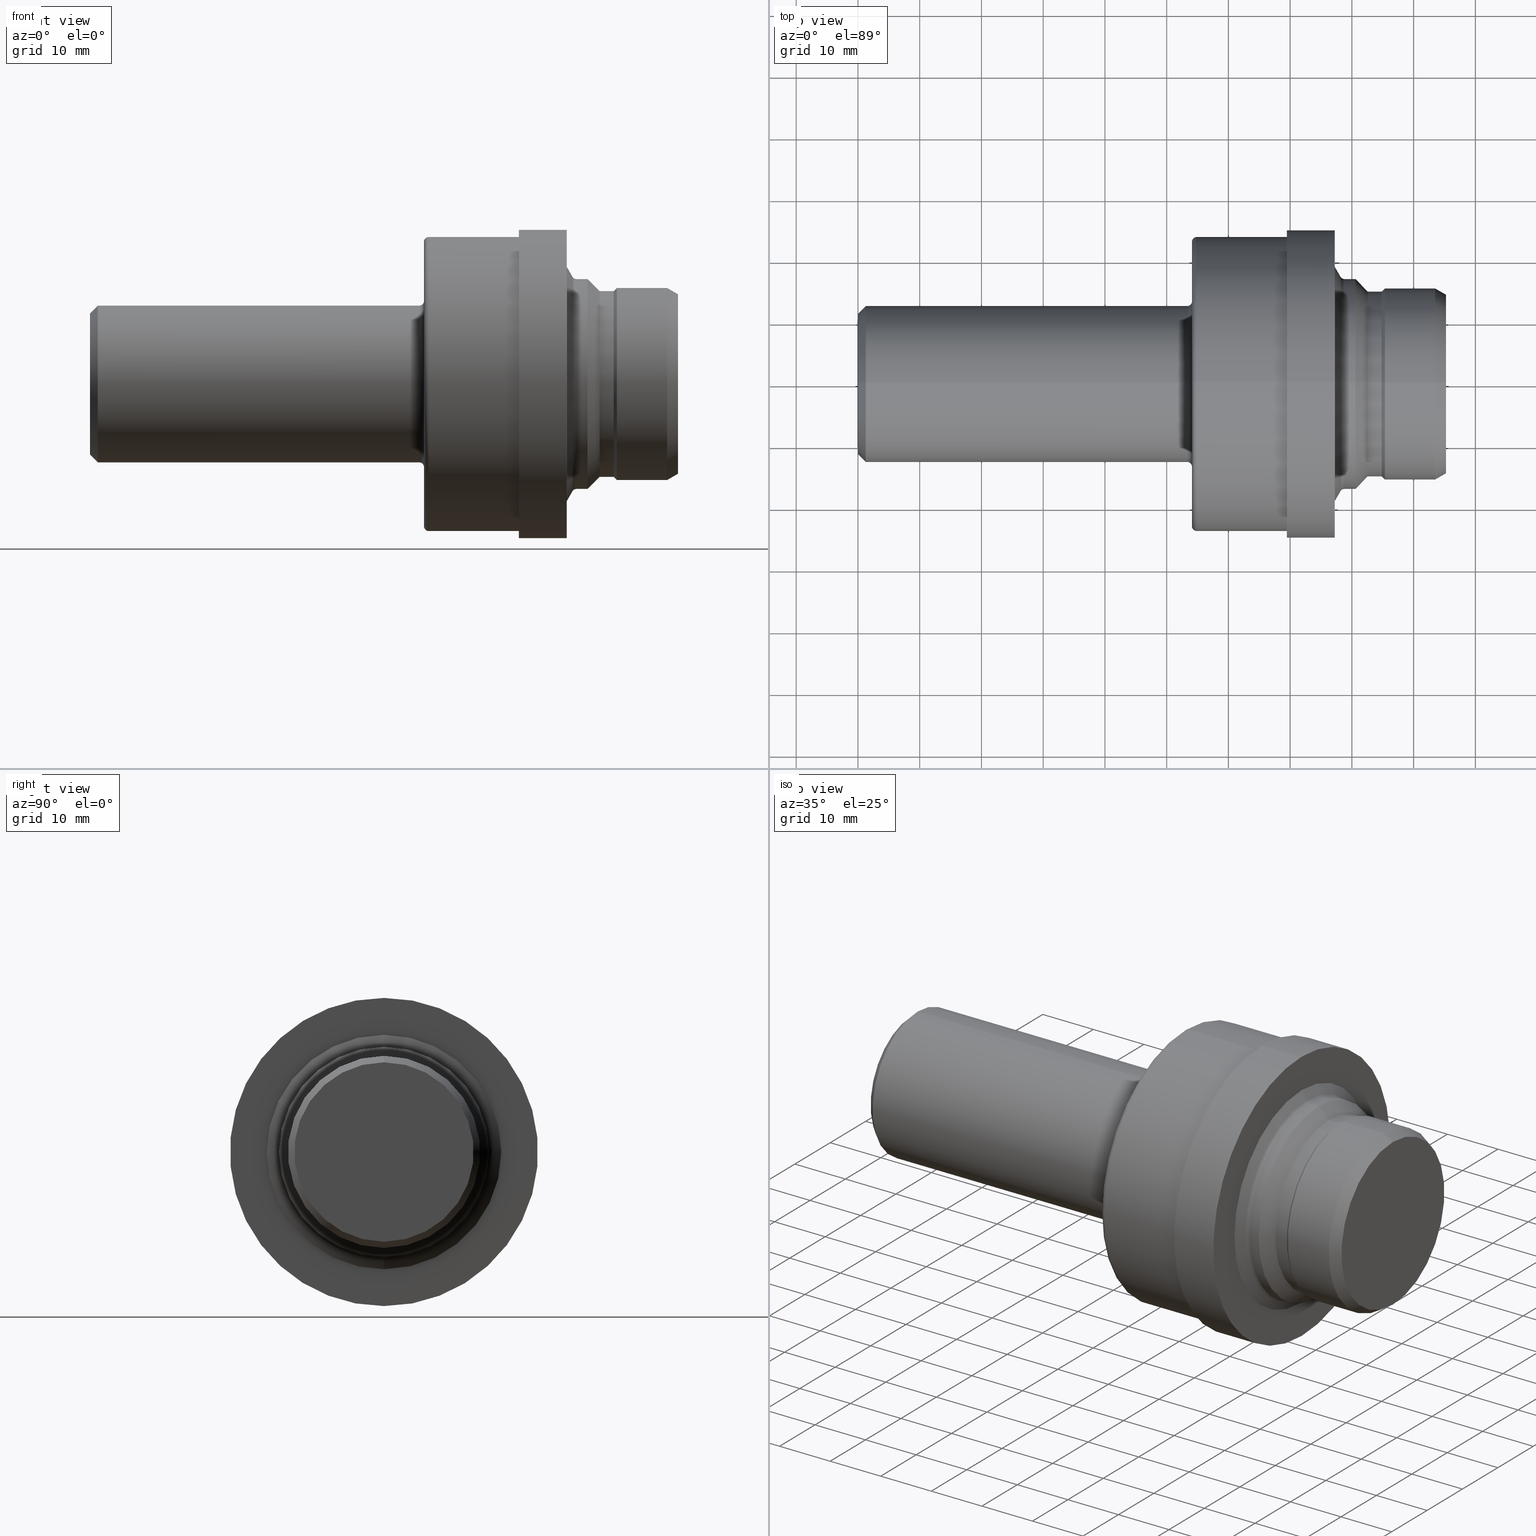
[diagram: canonical four-view strip — front | top / right | iso, engineering-drawing reading convention]
A machine part, canonical four-view strip (front | top / right | iso — engineering-drawing reading convention). The complete STEP part file that produces these views, byte-faithful:
ISO-10303-21;
HEADER;
FILE_DESCRIPTION (( 'STEP AP214' ),
    '1' );
FILE_NAME ('AND10050-16S.STEP',
    '2018-07-18T17:05:56',
    ( '' ),
    ( '' ),
    'SwSTEP 2.0',
    'SolidWorks 2018',
    '' );
FILE_SCHEMA (( 'AUTOMOTIVE_DESIGN' ));
ENDSEC;

DATA;
#1 = ORIENTED_EDGE ( 'NONE', *, *, #333, .F. ) ;
#2 = DIRECTION ( 'NONE',  ( 0.0000000000000000000, 0.0000000000000000000, 1.000000000000000000 ) ) ;
#3 = CARTESIAN_POINT ( 'NONE',  ( 2.100000000000000089, 6.305094045410148139E-17, -0.4998500000000000165 ) ) ;
#4 = LINE ( 'NONE', #753, #44 ) ;
#5 = ORIENTED_EDGE ( 'NONE', *, *, #613, .F. ) ;
#6 = ORIENTED_EDGE ( 'NONE', *, *, #528, .F. ) ;
#7 = CARTESIAN_POINT ( 'NONE',  ( 0.0000000000000000000, 0.0000000000000000000, 0.0000000000000000000 ) ) ;
#8 = EDGE_CURVE ( 'NONE', #18, #400, #462, .T. ) ;
#9 = DIRECTION ( 'NONE',  ( -1.000000000000000000, -0.0000000000000000000, -0.0000000000000000000 ) ) ;
#10 = FACE_OUTER_BOUND ( 'NONE', #69, .T. ) ;
#11 = CARTESIAN_POINT ( 'NONE',  ( 0.0000000000000000000, 0.0000000000000000000, 0.0000000000000000000 ) ) ;
#12 = CARTESIAN_POINT ( 'NONE',  ( 2.129999999999999893, 0.0000000000000000000, 0.0000000000000000000 ) ) ;
#13 = CONICAL_SURFACE ( 'NONE', #713, 0.5925000000000000266, 0.7853981633974482790 ) ;
#14 = VECTOR ( 'NONE', #479, 39.37007874015748143 ) ;
#15 = DIRECTION ( 'NONE',  ( 0.0000000000000000000, 0.0000000000000000000, 1.000000000000000000 ) ) ;
#16 = EDGE_CURVE ( 'NONE', #664, #17, #625, .T. ) ;
#17 = VERTEX_POINT ( 'NONE', #461 ) ;
#18 = VERTEX_POINT ( 'NONE', #114 ) ;
#19 = DIRECTION ( 'NONE',  ( -1.000000000000000000, -0.0000000000000000000, -0.0000000000000000000 ) ) ;
#20 = DIRECTION ( 'NONE',  ( 0.0000000000000000000, 0.0000000000000000000, 1.000000000000000000 ) ) ;
#21 = EDGE_CURVE ( 'NONE', #167, #418, #359, .T. ) ;
#22 = AXIS2_PLACEMENT_3D ( 'NONE', #647, #851, #592 ) ;
#23 = CARTESIAN_POINT ( 'NONE',  ( 2.100000000000000089, 0.0000000000000000000, 0.0000000000000000000 ) ) ;
#24 = DIRECTION ( 'NONE',  ( -1.000000000000000000, -0.0000000000000000000, -0.0000000000000000000 ) ) ;
#25 = CIRCLE ( 'NONE', #546, 0.5720854811567260834 ) ;
#26 = VECTOR ( 'NONE', #365, 39.37007874015748143 ) ;
#27 = EDGE_CURVE ( 'NONE', #17, #252, #192, .T. ) ;
#28 = CARTESIAN_POINT ( 'NONE',  ( 2.735000000000000320, 0.0000000000000000000, 0.0000000000000000000 ) ) ;
#29 = ORIENTED_EDGE ( 'NONE', *, *, #870, .T. ) ;
#30 = ORIENTED_EDGE ( 'NONE', *, *, #573, .F. ) ;
#31 = EDGE_CURVE ( 'NONE', #148, #158, #334, .T. ) ;
#32 = PRESENTATION_STYLE_ASSIGNMENT (( #62 ) ) ;
#33 = AXIS2_PLACEMENT_3D ( 'NONE', #208, #715, #734 ) ;
#34 = DIRECTION ( 'NONE',  ( 0.0000000000000000000, 0.0000000000000000000, 1.000000000000000000 ) ) ;
#35 = EDGE_LOOP ( 'NONE', ( #739, #253, #45, #107 ) ) ;
#36 = CARTESIAN_POINT ( 'NONE',  ( 3.040000000000000480, 0.0000000000000000000, 0.7475000000000000533 ) ) ;
#37 = DIRECTION ( 'NONE',  ( 0.0000000000000000000, 0.0000000000000000000, 1.000000000000000000 ) ) ;
#38 = AXIS2_PLACEMENT_3D ( 'NONE', #105, #287, #795 ) ;
#39 = CIRCLE ( 'NONE', #553, 0.9825000000000001510 ) ;
#40 = LINE ( 'NONE', #535, #417 ) ;
#41 = DIRECTION ( 'NONE',  ( 0.0000000000000000000, 0.0000000000000000000, 1.000000000000000000 ) ) ;
#42 = EDGE_CURVE ( 'NONE', #418, #51, #862, .T. ) ;
#43 = CARTESIAN_POINT ( 'NONE',  ( 0.0000000000000000000, 0.0000000000000000000, 0.0000000000000000000 ) ) ;
#44 = VECTOR ( 'NONE', #688, 39.37007874015748143 ) ;
#45 = ORIENTED_EDGE ( 'NONE', *, *, #727, .F. ) ;
#46 = CARTESIAN_POINT ( 'NONE',  ( 2.100000000000000089, 0.0000000000000000000, 0.0000000000000000000 ) ) ;
#47 = CARTESIAN_POINT ( 'NONE',  ( 3.360000000000000320, 0.0000000000000000000, 0.0000000000000000000 ) ) ;
#48 = DIRECTION ( 'NONE',  ( -1.000000000000000000, -0.0000000000000000000, -0.0000000000000000000 ) ) ;
#49 = CIRCLE ( 'NONE', #33, 0.6690999999999996950 ) ;
#50 = LINE ( 'NONE', #222, #815 ) ;
#51 = VERTEX_POINT ( 'NONE', #817 ) ;
#52 = CARTESIAN_POINT ( 'NONE',  ( 3.102007418910965875, 0.0000000000000000000, 0.6690999999999996950 ) ) ;
#53 = DIRECTION ( 'NONE',  ( 0.0000000000000000000, 0.0000000000000000000, -1.000000000000000000 ) ) ;
#54 = ADVANCED_FACE ( 'NONE', ( #509, #154 ), #84, .F. ) ;
#55 = ORIENTED_EDGE ( 'NONE', *, *, #8, .F. ) ;
#56 = EDGE_CURVE ( 'NONE', #661, #425, #424, .T. ) ;
#57 = EDGE_LOOP ( 'NONE', ( #551, #683, #207, #300 ) ) ;
#58 = AXIS2_PLACEMENT_3D ( 'NONE', #507, #756, #491 ) ;
#59 = DIRECTION ( 'NONE',  ( 0.0000000000000000000, 0.0000000000000000000, -1.000000000000000000 ) ) ;
#60 = VERTEX_POINT ( 'NONE', #387 ) ;
#61 = FACE_OUTER_BOUND ( 'NONE', #547, .T. ) ;
#62 = SURFACE_STYLE_USAGE ( .BOTH. , #209 ) ;
#63 = EDGE_CURVE ( 'NONE', #466, #115, #706, .T. ) ;
#64 = AXIS2_PLACEMENT_3D ( 'NONE', #168, #762, #226 ) ;
#65 = CONICAL_SURFACE ( 'NONE', #737, 0.4998500000000000165, 0.7853981633974463916 ) ;
#66 = CIRCLE ( 'NONE', #693, 0.6690999999999996950 ) ;
#67 = ADVANCED_FACE ( 'NONE', ( #623 ), #336, .T. ) ;
#68 = FACE_OUTER_BOUND ( 'NONE', #394, .T. ) ;
#69 = EDGE_LOOP ( 'NONE', ( #314, #201 ) ) ;
#70 = ORIENTED_EDGE ( 'NONE', *, *, #884, .T. ) ;
#71 = ORIENTED_EDGE ( 'NONE', *, *, #130, .F. ) ;
#72 = DIRECTION ( 'NONE',  ( -1.000000000000000000, -0.0000000000000000000, -0.0000000000000000000 ) ) ;
#73 = EDGE_CURVE ( 'NONE', #791, #51, #150, .T. ) ;
#74 = CARTESIAN_POINT ( 'NONE',  ( 3.249600000000000044, 0.0000000000000000000, 0.0000000000000000000 ) ) ;
#75 = CARTESIAN_POINT ( 'NONE',  ( 0.0000000000000000000, 0.0000000000000000000, 0.0000000000000000000 ) ) ;
#76 = ADVANCED_FACE ( 'NONE', ( #887 ), #886, .T. ) ;
#77 = EDGE_CURVE ( 'NONE', #791, #167, #802, .T. ) ;
#78 = CYLINDRICAL_SURFACE ( 'NONE', #743, 0.6124999999999999334 ) ;
#79 = ORIENTED_EDGE ( 'NONE', *, *, #31, .T. ) ;
#80 = VERTEX_POINT ( 'NONE', #604 ) ;
#81 = ORIENTED_EDGE ( 'NONE', *, *, #540, .F. ) ;
#82 = DIRECTION ( 'NONE',  ( 0.0000000000000000000, 0.0000000000000000000, 1.000000000000000000 ) ) ;
#83 = CARTESIAN_POINT ( 'NONE',  ( 0.0000000000000000000, 0.0000000000000000000, 0.0000000000000000000 ) ) ;
#84 = PLANE ( 'NONE',  #857 ) ;
#85 = AXIS2_PLACEMENT_3D ( 'NONE', #12, #504, #435 ) ;
#86 = VERTEX_POINT ( 'NONE', #326 ) ;
#87 = DIRECTION ( 'NONE',  ( -1.000000000000000000, -0.0000000000000000000, -0.0000000000000000000 ) ) ;
#88 = ADVANCED_FACE ( 'NONE', ( #238 ), #827, .T. ) ;
#89 = LINE ( 'NONE', #798, #695 ) ;
#90 = DIRECTION ( 'NONE',  ( 0.0000000000000000000, 0.0000000000000000000, 1.000000000000000000 ) ) ;
#91 = CIRCLE ( 'NONE', #658, 0.5925000000000000266 ) ;
#92 = DIRECTION ( 'NONE',  ( -1.000000000000000000, -0.0000000000000000000, -0.0000000000000000000 ) ) ;
#93 =( CONVERSION_BASED_UNIT ( 'INCH', #709 ) LENGTH_UNIT ( ) NAMED_UNIT ( #811 ) );
#94 = VERTEX_POINT ( 'NONE', #439 ) ;
#95 = CARTESIAN_POINT ( 'NONE',  ( 3.340000000000000302, 0.0000000000000000000, 0.0000000000000000000 ) ) ;
#96 = DIRECTION ( 'NONE',  ( -1.000000000000000000, -0.0000000000000000000, -0.0000000000000000000 ) ) ;
#97 = ORIENTED_EDGE ( 'NONE', *, *, #540, .T. ) ;
#98 = EDGE_LOOP ( 'NONE', ( #792, #617, #5, #384 ) ) ;
#99 = DIRECTION ( 'NONE',  ( -1.000000000000000000, -0.0000000000000000000, -0.0000000000000000000 ) ) ;
#100 = EDGE_CURVE ( 'NONE', #17, #158, #750, .T. ) ;
#101 = AXIS2_PLACEMENT_3D ( 'NONE', #155, #889, #20 ) ;
#102 = FACE_OUTER_BOUND ( 'NONE', #799, .T. ) ;
#103 = DIRECTION ( 'NONE',  ( 0.0000000000000000000, 0.0000000000000000000, 1.000000000000000000 ) ) ;
#104 = ORIENTED_EDGE ( 'NONE', *, *, #186, .T. ) ;
#105 = CARTESIAN_POINT ( 'NONE',  ( 3.040000000000000480, 0.9825000000000001510, 0.0000000000000000000 ) ) ;
#106 = DIRECTION ( 'NONE',  ( 0.0000000000000000000, 0.0000000000000000000, 1.000000000000000000 ) ) ;
#107 = ORIENTED_EDGE ( 'NONE', *, *, #692, .F. ) ;
#108 = ORIENTED_EDGE ( 'NONE', *, *, #42, .T. ) ;
#109 = CIRCLE ( 'NONE', #489, 0.9075000000000000844 ) ;
#110 = EDGE_CURVE ( 'NONE', #872, #167, #4, .T. ) ;
#111 = CIRCLE ( 'NONE', #254, 0.9375000000000000000 ) ;
#112 = ORIENTED_EDGE ( 'NONE', *, *, #741, .F. ) ;
#113 = VECTOR ( 'NONE', #164, 39.37007874015748143 ) ;
#114 = CARTESIAN_POINT ( 'NONE',  ( 2.159999999999999698, 0.0000000000000000000, 0.9375000000000000000 ) ) ;
#115 = VERTEX_POINT ( 'NONE', #545 ) ;
#116 = EDGE_CURVE ( 'NONE', #295, #241, #733, .T. ) ;
#117 = AXIS2_PLACEMENT_3D ( 'NONE', #23, #712, #176 ) ;
#118 = ORIENTED_EDGE ( 'NONE', *, *, #702, .F. ) ;
#119 = AXIS2_PLACEMENT_3D ( 'NONE', #153, #205, #103 ) ;
#120 = FACE_OUTER_BOUND ( 'NONE', #726, .T. ) ;
#121 = CARTESIAN_POINT ( 'NONE',  ( 3.340000000000000302, 0.0000000000000000000, 0.0000000000000000000 ) ) ;
#122 = ORIENTED_EDGE ( 'NONE', *, *, #322, .T. ) ;
#123 = ORIENTED_EDGE ( 'NONE', *, *, #814, .T. ) ;
#124 = EDGE_CURVE ( 'NONE', #252, #148, #531, .T. ) ;
#125 = ORIENTED_EDGE ( 'NONE', *, *, #149, .T. ) ;
#126 = DIRECTION ( 'NONE',  ( 0.0000000000000000000, 0.0000000000000000000, 1.000000000000000000 ) ) ;
#127 = ORIENTED_EDGE ( 'NONE', *, *, #199, .F. ) ;
#128 = DIRECTION ( 'NONE',  ( -1.000000000000000000, -0.0000000000000000000, -0.0000000000000000000 ) ) ;
#129 = CYLINDRICAL_SURFACE ( 'NONE', #807, 0.9375000000000000000 ) ;
#130 = EDGE_CURVE ( 'NONE', #94, #252, #178, .T. ) ;
#131 = APPLICATION_CONTEXT ( 'automotive_design' ) ;
#132 = CARTESIAN_POINT ( 'NONE',  ( 3.076892682201216811, 8.371685518971306722E-17, -0.6836000000000000965 ) ) ;
#133 = CARTESIAN_POINT ( 'NONE',  ( 2.129999999999999893, 0.9075000000000000844, 0.0000000000000000000 ) ) ;
#134 = PRODUCT ( 'AND10050-16S', 'AND10050-16S', '', ( #478 ) ) ;
#135 = DIRECTION ( 'NONE',  ( 0.0000000000000000000, 0.0000000000000000000, 1.000000000000000000 ) ) ;
#136 = ORIENTED_EDGE ( 'NONE', *, *, #142, .F. ) ;
#137 = ORIENTED_EDGE ( 'NONE', *, *, #785, .F. ) ;
#138 = AXIS2_PLACEMENT_3D ( 'NONE', #220, #519, #90 ) ;
#139 = ORIENTED_EDGE ( 'NONE', *, *, #829, .T. ) ;
#140 =( LENGTH_UNIT ( ) NAMED_UNIT ( * ) SI_UNIT ( $, .METRE. ) );
#141 = CARTESIAN_POINT ( 'NONE',  ( 0.05000000000000000278, 0.0000000000000000000, 0.0000000000000000000 ) ) ;
#142 = EDGE_CURVE ( 'NONE', #252, #17, #260, .T. ) ;
#143 = AXIS2_PLACEMENT_3D ( 'NONE', #270, #452, #273 ) ;
#144 = FILL_AREA_STYLE_COLOUR ( '', #183 ) ;
#145 = CYLINDRICAL_SURFACE ( 'NONE', #853, 0.4998500000000000165 ) ;
#146 = ADVANCED_FACE ( 'NONE', ( #867 ), #866, .T. ) ;
#147 = DIRECTION ( 'NONE',  ( 0.0000000000000000000, 0.0000000000000000000, -1.000000000000000000 ) ) ;
#148 = VERTEX_POINT ( 'NONE', #759 ) ;
#149 = EDGE_CURVE ( 'NONE', #664, #94, #335, .T. ) ;
#150 = LINE ( 'NONE', #684, #620 ) ;
#151 = CARTESIAN_POINT ( 'NONE',  ( 0.0000000000000000000, 0.0000000000000000000, -0.4498500000000001942 ) ) ;
#152 = ORIENTED_EDGE ( 'NONE', *, *, #410, .F. ) ;
#153 = CARTESIAN_POINT ( 'NONE',  ( 0.0000000000000000000, 0.0000000000000000000, 0.0000000000000000000 ) ) ;
#154 = FACE_OUTER_BOUND ( 'NONE', #580, .T. ) ;
#155 = CARTESIAN_POINT ( 'NONE',  ( 0.0000000000000000000, 0.0000000000000000000, 0.0000000000000000000 ) ) ;
#156 = DIRECTION ( 'NONE',  ( 0.0000000000000000000, 0.0000000000000000000, 1.000000000000000000 ) ) ;
#157 = DIRECTION ( 'NONE',  ( -1.000000000000000000, -0.0000000000000000000, -0.0000000000000000000 ) ) ;
#158 = VERTEX_POINT ( 'NONE', #846 ) ;
#159 = CARTESIAN_POINT ( 'NONE',  ( 3.360000000000000320, 0.0000000000000000000, -0.6124999999999999334 ) ) ;
#160 = ADVANCED_FACE ( 'NONE', ( #481, #315 ), #825, .F. ) ;
#161 = DIRECTION ( 'NONE',  ( 0.0000000000000000000, 0.0000000000000000000, -1.000000000000000000 ) ) ;
#162 = ORIENTED_EDGE ( 'NONE', *, *, #552, .F. ) ;
#163 = DIRECTION ( 'NONE',  ( 1.000000000000000000, 0.0000000000000000000, 0.0000000000000000000 ) ) ;
#164 = DIRECTION ( 'NONE',  ( -1.000000000000000000, -0.0000000000000000000, -0.0000000000000000000 ) ) ;
#165 = AXIS2_PLACEMENT_3D ( 'NONE', #487, #258, #880 ) ;
#166 = CIRCLE ( 'NONE', #138, 0.9075000000000000844 ) ;
#167 = VERTEX_POINT ( 'NONE', #339 ) ;
#168 = CARTESIAN_POINT ( 'NONE',  ( 3.360000000000000320, 0.0000000000000000000, 0.0000000000000000000 ) ) ;
#169 = ORIENTED_EDGE ( 'NONE', *, *, #8, .T. ) ;
#170 = VERTEX_POINT ( 'NONE', #132 ) ;
#171 = PLANE ( 'NONE',  #38 ) ;
#172 = ORIENTED_EDGE ( 'NONE', *, *, #177, .T. ) ;
#173 = ADVANCED_BREP_SHAPE_REPRESENTATION ( 'AND10050-16S', ( #725, #376 ), #529 ) ;
#174 = CARTESIAN_POINT ( 'NONE',  ( 2.129999999999999893, 0.0000000000000000000, 0.5298500000000000432 ) ) ;
#175 = EDGE_CURVE ( 'NONE', #872, #148, #496, .T. ) ;
#176 = DIRECTION ( 'NONE',  ( 0.0000000000000000000, 0.0000000000000000000, 1.000000000000000000 ) ) ;
#177 = EDGE_CURVE ( 'NONE', #400, #86, #109, .T. ) ;
#178 = LINE ( 'NONE', #329, #537 ) ;
#179 = DIRECTION ( 'NONE',  ( -1.000000000000000000, -0.0000000000000000000, -0.0000000000000000000 ) ) ;
#180 = AXIS2_PLACEMENT_3D ( 'NONE', #296, #87, #266 ) ;
#181 = DIRECTION ( 'NONE',  ( -1.000000000000000000, -0.0000000000000000000, -0.0000000000000000000 ) ) ;
#182 = VECTOR ( 'NONE', #243, 39.37007874015748143 ) ;
#183 = COLOUR_RGB ( '',0.7529411764705882248, 0.7529411764705882248, 0.7529411764705882248 ) ;
#184 = CIRCLE ( 'NONE', #228, 0.6835999999999997634 ) ;
#185 = EDGE_LOOP ( 'NONE', ( #118, #137, #338, #123 ) ) ;
#186 = EDGE_CURVE ( 'NONE', #430, #789, #480, .T. ) ;
#187 = DIRECTION ( 'NONE',  ( 0.0000000000000000000, 0.0000000000000000000, 1.000000000000000000 ) ) ;
#188 = ORIENTED_EDGE ( 'NONE', *, *, #573, .T. ) ;
#189 = DIRECTION ( 'NONE',  ( -0.7071067811865474617, 0.0000000000000000000, 0.7071067811865474617 ) ) ;
#190 = ADVANCED_FACE ( 'NONE', ( #61 ), #517, .F. ) ;
#191 = ORIENTED_EDGE ( 'NONE', *, *, #16, .F. ) ;
#192 = CIRCLE ( 'NONE', #360, 0.6124999999999999334 ) ;
#193 = EDGE_CURVE ( 'NONE', #676, #469, #765, .T. ) ;
#194 = CIRCLE ( 'NONE', #524, 0.9375000000000000000 ) ;
#195 = DIRECTION ( 'NONE',  ( -1.000000000000000000, -0.0000000000000000000, -0.0000000000000000000 ) ) ;
#196 = DIRECTION ( 'NONE',  ( -0.7071067811865474617, 8.659560562354932858E-17, -0.7071067811865474617 ) ) ;
#197 = ORIENTED_EDGE ( 'NONE', *, *, #344, .T. ) ;
#198 = ADVANCED_FACE ( 'NONE', ( #355 ), #403, .T. ) ;
#199 = EDGE_CURVE ( 'NONE', #530, #789, #49, .T. ) ;
#200 = CARTESIAN_POINT ( 'NONE',  ( 3.040000000000000480, 0.0000000000000000000, 0.0000000000000000000 ) ) ;
#201 = ORIENTED_EDGE ( 'NONE', *, *, #870, .F. ) ;
#202 = CYLINDRICAL_SURFACE ( 'NONE', #672, 0.9825000000000001510 ) ;
#203 = EDGE_CURVE ( 'NONE', #474, #561, #665, .T. ) ;
#204 =( NAMED_UNIT ( * ) SI_UNIT ( $, .STERADIAN. ) SOLID_ANGLE_UNIT ( ) );
#205 = DIRECTION ( 'NONE',  ( -1.000000000000000000, -0.0000000000000000000, -0.0000000000000000000 ) ) ;
#206 = LINE ( 'NONE', #803, #26 ) ;
#207 = ORIENTED_EDGE ( 'NONE', *, *, #821, .F. ) ;
#208 = CARTESIAN_POINT ( 'NONE',  ( 3.102007418910965875, 0.0000000000000000000, 0.0000000000000000000 ) ) ;
#209 = SURFACE_SIDE_STYLE ('',( #596 ) ) ;
#210 = AXIS2_PLACEMENT_3D ( 'NONE', #662, #503, #372 ) ;
#211 = DIRECTION ( 'NONE',  ( -1.000000000000000000, -0.0000000000000000000, -0.0000000000000000000 ) ) ;
#212 = DIRECTION ( 'NONE',  ( -0.0000000000000000000, 0.0000000000000000000, 1.000000000000000000 ) ) ;
#213 =( CONVERSION_BASED_UNIT ( 'INCH', #449 ) LENGTH_UNIT ( ) NAMED_UNIT ( #505 ) );
#214 = DIRECTION ( 'NONE',  ( 0.0000000000000000000, 0.0000000000000000000, 1.000000000000000000 ) ) ;
#215 = DIRECTION ( 'NONE',  ( -1.000000000000000000, -0.0000000000000000000, -0.0000000000000000000 ) ) ;
#216 = LINE ( 'NONE', #710, #657 ) ;
#217 = CARTESIAN_POINT ( 'NONE',  ( 3.750000000000000000, 0.5720854811567260834, 0.0000000000000000000 ) ) ;
#218 = CARTESIAN_POINT ( 'NONE',  ( 3.076892682201216811, 0.0000000000000000000, 0.0000000000000000000 ) ) ;
#219 = EDGE_CURVE ( 'NONE', #80, #561, #375, .T. ) ;
#220 = CARTESIAN_POINT ( 'NONE',  ( 2.129999999999999893, 0.0000000000000000000, 0.0000000000000000000 ) ) ;
#221 = ADVANCED_FACE ( 'NONE', ( #245 ), #129, .T. ) ;
#222 = CARTESIAN_POINT ( 'NONE',  ( 0.0000000000000000000, 0.0000000000000000000, 0.4998500000000000165 ) ) ;
#223 = CARTESIAN_POINT ( 'NONE',  ( 0.0000000000000000000, 0.0000000000000000000, 0.0000000000000000000 ) ) ;
#224 = PRODUCT_DEFINITION_CONTEXT ( 'detailed design', #324, 'design' ) ;
#225 = CARTESIAN_POINT ( 'NONE',  ( 3.680000000000000160, 7.500961644777538425E-17, -0.6124999999999999334 ) ) ;
#226 = DIRECTION ( 'NONE',  ( 0.0000000000000000000, 0.0000000000000000000, 1.000000000000000000 ) ) ;
#227 = FACE_OUTER_BOUND ( 'NONE', #639, .T. ) ;
#228 = AXIS2_PLACEMENT_3D ( 'NONE', #348, #652, #15 ) ;
#229 = CIRCLE ( 'NONE', #317, 0.9375000000000000000 ) ;
#230 = CARTESIAN_POINT ( 'NONE',  ( 3.040000000000000480, 0.0000000000000000000, 0.0000000000000000000 ) ) ;
#231 = DIRECTION ( 'NONE',  ( 0.0000000000000000000, -1.224646799147352221E-16, 1.000000000000000000 ) ) ;
#232 = DIRECTION ( 'NONE',  ( -1.000000000000000000, -0.0000000000000000000, -0.0000000000000000000 ) ) ;
#233 = ORIENTED_EDGE ( 'NONE', *, *, #671, .T. ) ;
#234 = AXIS2_PLACEMENT_3D ( 'NONE', #548, #128, #677 ) ;
#235 = DIRECTION ( 'NONE',  ( 1.000000000000000000, 0.0000000000000000000, 0.0000000000000000000 ) ) ;
#236 = FACE_OUTER_BOUND ( 'NONE', #380, .T. ) ;
#237 =( NAMED_UNIT ( * ) SI_UNIT ( $, .STERADIAN. ) SOLID_ANGLE_UNIT ( ) );
#238 = FACE_OUTER_BOUND ( 'NONE', #98, .T. ) ;
#239 = DIRECTION ( 'NONE',  ( 0.0000000000000000000, 0.0000000000000000000, 1.000000000000000000 ) ) ;
#240 = ORIENTED_EDGE ( 'NONE', *, *, #744, .T. ) ;
#241 = VERTEX_POINT ( 'NONE', #174 ) ;
#242 = FILL_AREA_STYLE ('',( #144 ) ) ;
#243 = DIRECTION ( 'NONE',  ( -1.000000000000000000, -0.0000000000000000000, -0.0000000000000000000 ) ) ;
#244 = AXIS2_PLACEMENT_3D ( 'NONE', #311, #440, #450 ) ;
#245 = FACE_OUTER_BOUND ( 'NONE', #645, .T. ) ;
#246 = FACE_OUTER_BOUND ( 'NONE', #533, .T. ) ;
#247 = ORIENTED_EDGE ( 'NONE', *, *, #893, .F. ) ;
#248 = VERTEX_POINT ( 'NONE', #356 ) ;
#249 = ADVANCED_FACE ( 'NONE', ( #10 ), #711, .F. ) ;
#250 =( NAMED_UNIT ( * ) PLANE_ANGLE_UNIT ( ) SI_UNIT ( $, .RADIAN. ) );
#251 = TOROIDAL_SURFACE ( 'NONE', #808, 0.9075000000000000844, 0.02999999999999995379 ) ;
#252 = VERTEX_POINT ( 'NONE', #225 ) ;
#253 = ORIENTED_EDGE ( 'NONE', *, *, #508, .T. ) ;
#254 = AXIS2_PLACEMENT_3D ( 'NONE', #28, #92, #106 ) ;
#255 = DIRECTION ( 'NONE',  ( 0.0000000000000000000, 0.0000000000000000000, 1.000000000000000000 ) ) ;
#256 = EDGE_LOOP ( 'NONE', ( #555, #279, #465, #352 ) ) ;
#257 = EDGE_LOOP ( 'NONE', ( #804, #660 ) ) ;
#258 = DIRECTION ( 'NONE',  ( -1.000000000000000000, -0.0000000000000000000, -0.0000000000000000000 ) ) ;
#259 = DIRECTION ( 'NONE',  ( 1.000000000000000000, 0.0000000000000000000, 0.0000000000000000000 ) ) ;
#260 = CIRCLE ( 'NONE', #234, 0.6124999999999999334 ) ;
#261 = CIRCLE ( 'NONE', #773, 0.4998500000000000165 ) ;
#262 = DIRECTION ( 'NONE',  ( 0.0000000000000000000, -1.224646799147354933E-16, 1.000000000000000000 ) ) ;
#263 = DIRECTION ( 'NONE',  ( -0.8660254037844382635, 6.123233995736774664E-17, -0.5000000000000006661 ) ) ;
#264 = ORIENTED_EDGE ( 'NONE', *, *, #727, .T. ) ;
#265 = ORIENTED_EDGE ( 'NONE', *, *, #744, .F. ) ;
#266 = DIRECTION ( 'NONE',  ( 0.0000000000000000000, 0.0000000000000000000, 1.000000000000000000 ) ) ;
#267 = ORIENTED_EDGE ( 'NONE', *, *, #455, .F. ) ;
#268 = CARTESIAN_POINT ( 'NONE',  ( 0.0000000000000000000, 0.0000000000000000000, 0.0000000000000000000 ) ) ;
#269 = ORIENTED_EDGE ( 'NONE', *, *, #63, .F. ) ;
#270 = CARTESIAN_POINT ( 'NONE',  ( 2.159999999999999698, 0.0000000000000000000, 0.0000000000000000000 ) ) ;
#271 = DIRECTION ( 'NONE',  ( -1.000000000000000000, -0.0000000000000000000, -0.0000000000000000000 ) ) ;
#272 = ORIENTED_EDGE ( 'NONE', *, *, #763, .T. ) ;
#273 = DIRECTION ( 'NONE',  ( 0.0000000000000000000, 0.0000000000000000000, 1.000000000000000000 ) ) ;
#274 = AXIS2_PLACEMENT_3D ( 'NONE', #321, #600, #602 ) ;
#275 = AXIS2_PLACEMENT_3D ( 'NONE', #218, #370, #632 ) ;
#276 = CARTESIAN_POINT ( 'NONE',  ( 3.102007418910965875, 8.194111733094939052E-17, -0.6690999999999996950 ) ) ;
#277 = FILL_AREA_STYLE ('',( #778 ) ) ;
#278 = CIRCLE ( 'NONE', #703, 0.02900000000000029290 ) ;
#279 = ORIENTED_EDGE ( 'NONE', *, *, #293, .T. ) ;
#280 = DIRECTION ( 'NONE',  ( 0.0000000000000000000, -1.000000000000000000, 0.0000000000000000000 ) ) ;
#281 = DIRECTION ( 'NONE',  ( -1.000000000000000000, 0.0000000000000000000, -0.0000000000000000000 ) ) ;
#282 = EDGE_CURVE ( 'NONE', #820, #248, #297, .T. ) ;
#283 = ORIENTED_EDGE ( 'NONE', *, *, #110, .F. ) ;
#284 = ORIENTED_EDGE ( 'NONE', *, *, #124, .F. ) ;
#285 = ORIENTED_EDGE ( 'NONE', *, *, #763, .F. ) ;
#286 = DIRECTION ( 'NONE',  ( -1.000000000000000000, -0.0000000000000000000, -0.0000000000000000000 ) ) ;
#287 = DIRECTION ( 'NONE',  ( -1.000000000000000000, 0.0000000000000000000, -0.0000000000000000000 ) ) ;
#288 = AXIS2_PLACEMENT_3D ( 'NONE', #83, #72, #34 ) ;
#289 = CIRCLE ( 'NONE', #865, 0.4498500000000001942 ) ;
#290 = CARTESIAN_POINT ( 'NONE',  ( 0.0000000000000000000, 8.194111733094939052E-17, -0.6690999999999998060 ) ) ;
#291 = ORIENTED_EDGE ( 'NONE', *, *, #73, .F. ) ;
#292 = ORIENTED_EDGE ( 'NONE', *, *, #593, .T. ) ;
#293 = EDGE_CURVE ( 'NONE', #426, #158, #89, .T. ) ;
#294 = AXIS2_PLACEMENT_3D ( 'NONE', #347, #445, #443 ) ;
#295 = VERTEX_POINT ( 'NONE', #436 ) ;
#296 = CARTESIAN_POINT ( 'NONE',  ( 3.040000000000000480, 0.0000000000000000000, 0.0000000000000000000 ) ) ;
#297 = CIRCLE ( 'NONE', #244, 0.9375000000000000000 ) ;
#298 = CARTESIAN_POINT ( 'NONE',  ( 2.159999999999999698, 0.0000000000000000000, 0.0000000000000000000 ) ) ;
#299 = FACE_OUTER_BOUND ( 'NONE', #717, .T. ) ;
#300 = ORIENTED_EDGE ( 'NONE', *, *, #597, .F. ) ;
#301 = CARTESIAN_POINT ( 'NONE',  ( 0.0000000000000000000, 1.148106374200643740E-16, -0.9375000000000000000 ) ) ;
#302 = ORIENTED_EDGE ( 'NONE', *, *, #829, .F. ) ;
#303 = DIRECTION ( 'NONE',  ( 0.0000000000000000000, 0.0000000000000000000, -1.000000000000000000 ) ) ;
#304 = ORIENTED_EDGE ( 'NONE', *, *, #186, .F. ) ;
#305 = DIRECTION ( 'NONE',  ( -1.000000000000000000, -0.0000000000000000000, -0.0000000000000000000 ) ) ;
#306 = ORIENTED_EDGE ( 'NONE', *, *, #322, .F. ) ;
#307 = VECTOR ( 'NONE', #670, 39.37007874015748143 ) ;
#308 = CARTESIAN_POINT ( 'NONE',  ( 3.076892682201216811, 0.0000000000000000000, 0.0000000000000000000 ) ) ;
#309 = VECTOR ( 'NONE', #563, 39.37007874015748143 ) ;
#310 = DIRECTION ( 'NONE',  ( 0.0000000000000000000, 0.0000000000000000000, 1.000000000000000000 ) ) ;
#311 = CARTESIAN_POINT ( 'NONE',  ( 2.735000000000000320, 0.0000000000000000000, 0.0000000000000000000 ) ) ;
#312 = CARTESIAN_POINT ( 'NONE',  ( 3.249600000000000044, 7.256032284948068326E-17, -0.5925000000000000266 ) ) ;
#313 = ORIENTED_EDGE ( 'NONE', *, *, #801, .T. ) ;
#314 = ORIENTED_EDGE ( 'NONE', *, *, #149, .F. ) ;
#315 = FACE_OUTER_BOUND ( 'NONE', #257, .T. ) ;
#316 = ORIENTED_EDGE ( 'NONE', *, *, #593, .F. ) ;
#317 = AXIS2_PLACEMENT_3D ( 'NONE', #590, #581, #432 ) ;
#318 = ORIENTED_EDGE ( 'NONE', *, *, #514, .F. ) ;
#319 = FACE_OUTER_BOUND ( 'NONE', #848, .T. ) ;
#320 =( NAMED_UNIT ( * ) SI_UNIT ( $, .STERADIAN. ) SOLID_ANGLE_UNIT ( ) );
#321 = CARTESIAN_POINT ( 'NONE',  ( 0.05000000000000000278, 0.0000000000000000000, 0.0000000000000000000 ) ) ;
#322 = EDGE_CURVE ( 'NONE', #248, #820, #111, .T. ) ;
#323 = FACE_OUTER_BOUND ( 'NONE', #185, .T. ) ;
#324 = APPLICATION_CONTEXT ( 'automotive_design' ) ;
#325 = ORIENTED_EDGE ( 'NONE', *, *, #410, .T. ) ;
#326 = CARTESIAN_POINT ( 'NONE',  ( 2.129999999999999893, 1.129736672213433359E-16, -0.9075000000000000844 ) ) ;
#327 = ORIENTED_EDGE ( 'NONE', *, *, #219, .T. ) ;
#328 = CARTESIAN_POINT ( 'NONE',  ( 0.0000000000000000000, 0.0000000000000000000, 0.0000000000000000000 ) ) ;
#329 = CARTESIAN_POINT ( 'NONE',  ( 3.750000000000000000, 7.006026533372579416E-17, -0.5720854811567260834 ) ) ;
#330 = ORIENTED_EDGE ( 'NONE', *, *, #142, .T. ) ;
#331 = DIRECTION ( 'NONE',  ( -1.000000000000000000, -0.0000000000000000000, -0.0000000000000000000 ) ) ;
#332 = ORIENTED_EDGE ( 'NONE', *, *, #42, .F. ) ;
#333 = EDGE_CURVE ( 'NONE', #60, #80, #550, .T. ) ;
#334 = CIRCLE ( 'NONE', #749, 0.6124999999999999334 ) ;
#335 = CIRCLE ( 'NONE', #396, 0.5720854811567260834 ) ;
#336 = CONICAL_SURFACE ( 'NONE', #495, 0.6835999999999997634, 1.047197551196605847 ) ;
#337 = DIRECTION ( 'NONE',  ( -0.4999999999999929501, 1.060575238724911845E-16, -0.8660254037844427044 ) ) ;
#338 = ORIENTED_EDGE ( 'NONE', *, *, #427, .T. ) ;
#339 = CARTESIAN_POINT ( 'NONE',  ( 3.249600000000000044, 7.256032284948068326E-17, -0.5925000000000000266 ) ) ;
#340 = DIRECTION ( 'NONE',  ( 1.000000000000000000, 0.0000000000000000000, 0.0000000000000000000 ) ) ;
#341 = ORIENTED_EDGE ( 'NONE', *, *, #366, .T. ) ;
#342 = ORIENTED_EDGE ( 'NONE', *, *, #366, .F. ) ;
#343 = DIRECTION ( 'NONE',  ( 0.0000000000000000000, 0.0000000000000000000, 1.000000000000000000 ) ) ;
#344 = EDGE_CURVE ( 'NONE', #426, #791, #402, .T. ) ;
#345 = STYLED_ITEM ( 'NONE', ( #656 ), #173 ) ;
#346 = DIRECTION ( 'NONE',  ( -1.000000000000000000, -0.0000000000000000000, -0.0000000000000000000 ) ) ;
#347 = CARTESIAN_POINT ( 'NONE',  ( 3.249600000000000044, 0.0000000000000000000, 0.0000000000000000000 ) ) ;
#348 = CARTESIAN_POINT ( 'NONE',  ( 3.076892682201216811, 0.0000000000000000000, 0.0000000000000000000 ) ) ;
#349 = APPLICATION_PROTOCOL_DEFINITION ( 'draft international standard', 'automotive_design', 1998, #324 ) ;
#350 = FACE_OUTER_BOUND ( 'NONE', #570, .T. ) ;
#351 = AXIS2_PLACEMENT_3D ( 'NONE', #368, #774, #700 ) ;
#352 = ORIENTED_EDGE ( 'NONE', *, *, #175, .F. ) ;
#353 = VERTEX_POINT ( 'NONE', #511 ) ;
#354 =( GEOMETRIC_REPRESENTATION_CONTEXT ( 3 ) GLOBAL_UNCERTAINTY_ASSIGNED_CONTEXT ( ( #813 ) ) GLOBAL_UNIT_ASSIGNED_CONTEXT ( ( #213, #250, #204 ) ) REPRESENTATION_CONTEXT ( 'NONE', 'WORKASPACE' ) );
#355 = FACE_OUTER_BOUND ( 'NONE', #57, .T. ) ;
#356 = CARTESIAN_POINT ( 'NONE',  ( 2.735000000000000320, 0.0000000000000000000, 0.9375000000000000000 ) ) ;
#357 = DIRECTION ( 'NONE',  ( 0.0000000000000000000, 0.0000000000000000000, -1.000000000000000000 ) ) ;
#358 = ORIENTED_EDGE ( 'NONE', *, *, #528, .T. ) ;
#359 = LINE ( 'NONE', #312, #378 ) ;
#360 = AXIS2_PLACEMENT_3D ( 'NONE', #745, #181, #214 ) ;
#361 = PRESENTATION_LAYER_ASSIGNMENT (  '', '', ( #345 ) ) ;
#362 = ADVANCED_FACE ( 'NONE', ( #319 ), #202, .T. ) ;
#363 = DIRECTION ( 'NONE',  ( -1.000000000000000000, -0.0000000000000000000, -0.0000000000000000000 ) ) ;
#364 = DIRECTION ( 'NONE',  ( -1.000000000000000000, -0.0000000000000000000, -0.0000000000000000000 ) ) ;
#365 = DIRECTION ( 'NONE',  ( -1.000000000000000000, -0.0000000000000000000, -0.0000000000000000000 ) ) ;
#366 = EDGE_CURVE ( 'NONE', #872, #426, #648, .T. ) ;
#367 = ADVANCED_FACE ( 'NONE', ( #605 ), #65, .T. ) ;
#368 = CARTESIAN_POINT ( 'NONE',  ( 2.735000000000000320, 0.0000000000000000000, 0.0000000000000000000 ) ) ;
#369 = VECTOR ( 'NONE', #337, 39.37007874015748143 ) ;
#370 = DIRECTION ( 'NONE',  ( -1.000000000000000000, -0.0000000000000000000, -0.0000000000000000000 ) ) ;
#371 = FACE_OUTER_BOUND ( 'NONE', #674, .T. ) ;
#372 = DIRECTION ( 'NONE',  ( 0.0000000000000000000, 0.0000000000000000000, 1.000000000000000000 ) ) ;
#373 = EDGE_LOOP ( 'NONE', ( #409, #638, #877, #291 ) ) ;
#374 = EDGE_CURVE ( 'NONE', #51, #418, #413, .T. ) ;
#375 = LINE ( 'NONE', #729, #609 ) ;
#376 = AXIS2_PLACEMENT_3D ( 'NONE', #834, #255, #871 ) ;
#377 = ORIENTED_EDGE ( 'NONE', *, *, #56, .T. ) ;
#378 = VECTOR ( 'NONE', #196, 39.37007874015748854 ) ;
#379 = DIRECTION ( 'NONE',  ( 0.0000000000000000000, 0.0000000000000000000, 1.000000000000000000 ) ) ;
#380 = EDGE_LOOP ( 'NONE', ( #313, #608, #669, #453 ) ) ;
#381 = CARTESIAN_POINT ( 'NONE',  ( 2.735000000000000320, 0.0000000000000000000, 0.0000000000000000000 ) ) ;
#382 = COLOUR_RGB ( '',0.7529411764705882248, 0.7529411764705882248, 0.7529411764705882248 ) ;
#383 = EDGE_LOOP ( 'NONE', ( #407, #108, #512, #127 ) ) ;
#384 = ORIENTED_EDGE ( 'NONE', *, *, #100, .F. ) ;
#385 = DIRECTION ( 'NONE',  ( 0.0000000000000000000, 0.0000000000000000000, 1.000000000000000000 ) ) ;
#386 = MECHANICAL_DESIGN_GEOMETRIC_PRESENTATION_REPRESENTATION (  '', ( #345 ), #354 ) ;
#387 = CARTESIAN_POINT ( 'NONE',  ( 3.040000000000000480, 1.203215480162274635E-16, -0.9825000000000001510 ) ) ;
#388 = AXIS2_PLACEMENT_3D ( 'NONE', #612, #747, #485 ) ;
#389 = STYLED_ITEM ( 'NONE', ( #32 ), #725 ) ;
#390 = DIRECTION ( 'NONE',  ( 0.0000000000000000000, 0.0000000000000000000, 1.000000000000000000 ) ) ;
#391 = CYLINDRICAL_SURFACE ( 'NONE', #614, 0.9375000000000000000 ) ;
#392 = FACE_OUTER_BOUND ( 'NONE', #515, .T. ) ;
#393 = DIRECTION ( 'NONE',  ( 0.0000000000000000000, 0.0000000000000000000, 1.000000000000000000 ) ) ;
#394 = EDGE_LOOP ( 'NONE', ( #152, #842, #879, #694 ) ) ;
#395 = ORIENTED_EDGE ( 'NONE', *, *, #100, .T. ) ;
#396 = AXIS2_PLACEMENT_3D ( 'NONE', #421, #364, #493 ) ;
#397 = DIRECTION ( 'NONE',  ( -1.000000000000000000, -0.0000000000000000000, -0.0000000000000000000 ) ) ;
#398 = PRODUCT_DEFINITION ( 'UNKNOWN', '', #471, #224 ) ;
#399 = DIRECTION ( 'NONE',  ( -1.000000000000000000, -0.0000000000000000000, -0.0000000000000000000 ) ) ;
#400 = VERTEX_POINT ( 'NONE', #793 ) ;
#401 = ADVANCED_FACE ( 'NONE', ( #845 ), #783, .F. ) ;
#402 = LINE ( 'NONE', #731, #182 ) ;
#403 = CYLINDRICAL_SURFACE ( 'NONE', #119, 0.6690999999999998060 ) ;
#404 = AXIS2_PLACEMENT_3D ( 'NONE', #230, #215, #858 ) ;
#405 = FACE_OUTER_BOUND ( 'NONE', #373, .T. ) ;
#406 = AXIS2_PLACEMENT_3D ( 'NONE', #835, #852, #697 ) ;
#407 = ORIENTED_EDGE ( 'NONE', *, *, #618, .F. ) ;
#408 = DIRECTION ( 'NONE',  ( 0.0000000000000000000, 0.0000000000000000000, 1.000000000000000000 ) ) ;
#409 = ORIENTED_EDGE ( 'NONE', *, *, #77, .T. ) ;
#410 = EDGE_CURVE ( 'NONE', #469, #115, #482, .T. ) ;
#411 = DIRECTION ( 'NONE',  ( -1.000000000000000000, -0.0000000000000000000, -0.0000000000000000000 ) ) ;
#412 = CARTESIAN_POINT ( 'NONE',  ( 2.100000000000000089, 0.0000000000000000000, 0.0000000000000000000 ) ) ;
#413 = CIRCLE ( 'NONE', #626, 0.6691000000000000281 ) ;
#414 = CARTESIAN_POINT ( 'NONE',  ( 2.735000000000000320, 1.148106374200643740E-16, -0.9375000000000000000 ) ) ;
#415 = CIRCLE ( 'NONE', #539, 0.02999999999999995379 ) ;
#416 = CARTESIAN_POINT ( 'NONE',  ( 3.102007418910965875, 8.549259304847671928E-17, -0.6980999999999999428 ) ) ;
#417 = VECTOR ( 'NONE', #522, 39.37007874015748143 ) ;
#418 = VERTEX_POINT ( 'NONE', #586 ) ;
#419 = AXIS2_PLACEMENT_3D ( 'NONE', #460, #454, #784 ) ;
#420 = CARTESIAN_POINT ( 'NONE',  ( 3.102007418910965875, 0.0000000000000000000, 0.0000000000000000000 ) ) ;
#421 = CARTESIAN_POINT ( 'NONE',  ( 3.750000000000000000, 0.0000000000000000000, 0.0000000000000000000 ) ) ;
#422 = DIRECTION ( 'NONE',  ( -1.000000000000000000, -0.0000000000000000000, -0.0000000000000000000 ) ) ;
#423 = DIRECTION ( 'NONE',  ( -0.4999999999999929501, 0.0000000000000000000, 0.8660254037844427044 ) ) ;
#424 = CIRCLE ( 'NONE', #634, 0.4998500000000000165 ) ;
#425 = VERTEX_POINT ( 'NONE', #575 ) ;
#426 = VERTEX_POINT ( 'NONE', #571 ) ;
#427 = EDGE_CURVE ( 'NONE', #425, #241, #716, .T. ) ;
#428 = FACE_OUTER_BOUND ( 'NONE', #501, .T. ) ;
#429 = AXIS2_PLACEMENT_3D ( 'NONE', #751, #881, #59 ) ;
#430 = VERTEX_POINT ( 'NONE', #601 ) ;
#431 = CARTESIAN_POINT ( 'NONE',  ( 3.173000000000000487, 0.0000000000000000000, 0.0000000000000000000 ) ) ;
#432 = DIRECTION ( 'NONE',  ( 0.0000000000000000000, 0.0000000000000000000, 1.000000000000000000 ) ) ;
#433 =( NAMED_UNIT ( * ) PLANE_ANGLE_UNIT ( ) SI_UNIT ( $, .RADIAN. ) );
#434 = ORIENTED_EDGE ( 'NONE', *, *, #31, .F. ) ;
#435 = DIRECTION ( 'NONE',  ( 0.0000000000000000000, 0.0000000000000000000, 1.000000000000000000 ) ) ;
#436 = CARTESIAN_POINT ( 'NONE',  ( 2.129999999999999893, 6.488791065282250713E-17, -0.5298500000000000432 ) ) ;
#437 = VECTOR ( 'NONE', #650, 39.37007874015748143 ) ;
#438 = DIRECTION ( 'NONE',  ( 0.0000000000000000000, 0.0000000000000000000, 1.000000000000000000 ) ) ;
#439 = CARTESIAN_POINT ( 'NONE',  ( 3.750000000000000000, 7.253494089075058920E-17, -0.5720854811567260834 ) ) ;
#440 = DIRECTION ( 'NONE',  ( -1.000000000000000000, -0.0000000000000000000, -0.0000000000000000000 ) ) ;
#441 = CYLINDRICAL_SURFACE ( 'NONE', #895, 0.4998500000000000165 ) ;
#442 = EDGE_LOOP ( 'NONE', ( #527, #188, #838, #285 ) ) ;
#443 = DIRECTION ( 'NONE',  ( 0.0000000000000000000, 0.0000000000000000000, 1.000000000000000000 ) ) ;
#444 = AXIS2_PLACEMENT_3D ( 'NONE', #690, #640, #126 ) ;
#445 = DIRECTION ( 'NONE',  ( -1.000000000000000000, -0.0000000000000000000, -0.0000000000000000000 ) ) ;
#446 = EDGE_LOOP ( 'NONE', ( #520, #377, #767, #269 ) ) ;
#447 = CARTESIAN_POINT ( 'NONE',  ( 0.0000000000000000000, 0.0000000000000000000, 0.0000000000000000000 ) ) ;
#448 = AXIS2_PLACEMENT_3D ( 'NONE', #381, #422, #239 ) ;
#449 = LENGTH_MEASURE_WITH_UNIT ( LENGTH_MEASURE( 0.02539999999999999897 ), #140 );
#450 = DIRECTION ( 'NONE',  ( 0.0000000000000000000, 0.0000000000000000000, 1.000000000000000000 ) ) ;
#451 = FACE_OUTER_BOUND ( 'NONE', #878, .T. ) ;
#452 = DIRECTION ( 'NONE',  ( -1.000000000000000000, -0.0000000000000000000, -0.0000000000000000000 ) ) ;
#453 = ORIENTED_EDGE ( 'NONE', *, *, #344, .F. ) ;
#454 = DIRECTION ( 'NONE',  ( 1.000000000000000000, 0.0000000000000000000, 0.0000000000000000000 ) ) ;
#455 = EDGE_CURVE ( 'NONE', #561, #474, #591, .T. ) ;
#456 = MECHANICAL_DESIGN_GEOMETRIC_PRESENTATION_REPRESENTATION (  '', ( #389 ), #796 ) ;
#457 = DIRECTION ( 'NONE',  ( 1.000000000000000000, 0.0000000000000000000, 0.0000000000000000000 ) ) ;
#458 = ORIENTED_EDGE ( 'NONE', *, *, #576, .T. ) ;
#459 = EDGE_LOOP ( 'NONE', ( #861, #794, #641, #752 ) ) ;
#460 = CARTESIAN_POINT ( 'NONE',  ( 0.05000000000000000278, 0.0000000000000000000, 0.0000000000000000000 ) ) ;
#461 = CARTESIAN_POINT ( 'NONE',  ( 3.680000000000000160, 0.0000000000000000000, 0.6124999999999999334 ) ) ;
#462 = CIRCLE ( 'NONE', #429, 0.02999999999999995379 ) ;
#463 = CIRCLE ( 'NONE', #719, 0.7475000000000000533 ) ;
#464 =( LENGTH_UNIT ( ) NAMED_UNIT ( * ) SI_UNIT ( $, .METRE. ) );
#465 = ORIENTED_EDGE ( 'NONE', *, *, #613, .T. ) ;
#466 = VERTEX_POINT ( 'NONE', #536 ) ;
#467 = PRESENTATION_LAYER_ASSIGNMENT (  '', '', ( #389 ) ) ;
#468 = DIRECTION ( 'NONE',  ( 0.0000000000000000000, 0.0000000000000000000, -1.000000000000000000 ) ) ;
#469 = VERTEX_POINT ( 'NONE', #567 ) ;
#470 = AXIS2_PLACEMENT_3D ( 'NONE', #883, #259, #53 ) ;
#471 = PRODUCT_DEFINITION_FORMATION_WITH_SPECIFIED_SOURCE ( 'ANY', '', #134, .NOT_KNOWN. ) ;
#472 = DIRECTION ( 'NONE',  ( 0.0000000000000000000, 0.0000000000000000000, 1.000000000000000000 ) ) ;
#473 = FACE_OUTER_BOUND ( 'NONE', #446, .T. ) ;
#474 = VERTEX_POINT ( 'NONE', #805 ) ;
#475 = APPLICATION_PROTOCOL_DEFINITION ( 'draft international standard', 'automotive_design', 1998, #131 ) ;
#476 = ADVANCED_FACE ( 'NONE', ( #68 ), #760, .T. ) ;
#477 = AXIS2_PLACEMENT_3D ( 'NONE', #223, #163, #161 ) ;
#478 = PRODUCT_CONTEXT ( 'NONE', #131, 'mechanical' ) ;
#479 = DIRECTION ( 'NONE',  ( -1.000000000000000000, -0.0000000000000000000, -0.0000000000000000000 ) ) ;
#480 = CIRCLE ( 'NONE', #736, 0.02900000000000029290 ) ;
#481 = FACE_BOUND ( 'NONE', #812, .T. ) ;
#482 = LINE ( 'NONE', #850, #437 ) ;
#483 = CIRCLE ( 'NONE', #655, 0.4998500000000000165 ) ;
#484 = DIRECTION ( 'NONE',  ( 0.0000000000000000000, 0.0000000000000000000, 1.000000000000000000 ) ) ;
#485 = DIRECTION ( 'NONE',  ( 0.0000000000000000000, 0.0000000000000000000, 1.000000000000000000 ) ) ;
#486 = EDGE_LOOP ( 'NONE', ( #761, #162, #104, #521 ) ) ;
#487 = CARTESIAN_POINT ( 'NONE',  ( 3.750000000000000000, 0.0000000000000000000, 0.0000000000000000000 ) ) ;
#488 = CARTESIAN_POINT ( 'NONE',  ( 2.735000000000000320, 0.0000000000000000000, 0.9825000000000001510 ) ) ;
#489 = AXIS2_PLACEMENT_3D ( 'NONE', #781, #286, #849 ) ;
#490 = EDGE_LOOP ( 'NONE', ( #283, #341, #197, #6 ) ) ;
#491 = DIRECTION ( 'NONE',  ( 0.0000000000000000000, 0.0000000000000000000, 1.000000000000000000 ) ) ;
#492 = DIRECTION ( 'NONE',  ( 0.0000000000000000000, 0.0000000000000000000, 1.000000000000000000 ) ) ;
#493 = DIRECTION ( 'NONE',  ( 0.0000000000000000000, 0.0000000000000000000, 1.000000000000000000 ) ) ;
#494 = DIRECTION ( 'NONE',  ( 0.0000000000000000000, 0.0000000000000000000, 1.000000000000000000 ) ) ;
#495 = AXIS2_PLACEMENT_3D ( 'NONE', #308, #9, #156 ) ;
#496 = LINE ( 'NONE', #159, #782 ) ;
#497 = DIRECTION ( 'NONE',  ( -1.000000000000000000, -0.0000000000000000000, -0.0000000000000000000 ) ) ;
#498 = TOROIDAL_SURFACE ( 'NONE', #117, 0.5298500000000000432, 0.02999999999999998848 ) ;
#499 = DIRECTION ( 'NONE',  ( 0.0000000000000000000, 0.0000000000000000000, 1.000000000000000000 ) ) ;
#500 = ORIENTED_EDGE ( 'NONE', *, *, #116, .F. ) ;
#501 = EDGE_LOOP ( 'NONE', ( #558, #342, #722, #79 ) ) ;
#502 = DIRECTION ( 'NONE',  ( 0.0000000000000000000, 0.0000000000000000000, -1.000000000000000000 ) ) ;
#503 = DIRECTION ( 'NONE',  ( -1.000000000000000000, -0.0000000000000000000, -0.0000000000000000000 ) ) ;
#504 = DIRECTION ( 'NONE',  ( -1.000000000000000000, -0.0000000000000000000, -0.0000000000000000000 ) ) ;
#505 = DIMENSIONAL_EXPONENTS ( 1.000000000000000000, 0.0000000000000000000, 0.0000000000000000000, 0.0000000000000000000, 0.0000000000000000000, 0.0000000000000000000, 0.0000000000000000000 ) ;
#506 = DIRECTION ( 'NONE',  ( 0.0000000000000000000, -1.000000000000000000, 0.0000000000000000000 ) ) ;
#507 = CARTESIAN_POINT ( 'NONE',  ( 3.750000000000000000, 0.0000000000000000000, 0.0000000000000000000 ) ) ;
#508 = EDGE_CURVE ( 'NONE', #661, #466, #40, .T. ) ;
#509 = FACE_BOUND ( 'NONE', #869, .T. ) ;
#510 = CARTESIAN_POINT ( 'NONE',  ( 0.0000000000000000000, 0.0000000000000000000, 0.6124999999999999334 ) ) ;
#511 = CARTESIAN_POINT ( 'NONE',  ( 2.159999999999999698, 1.148106374200643740E-16, -0.9375000000000000000 ) ) ;
#512 = ORIENTED_EDGE ( 'NONE', *, *, #597, .T. ) ;
#513 = CARTESIAN_POINT ( 'NONE',  ( 2.100000000000000089, 0.0000000000000000000, 0.5298500000000000432 ) ) ;
#514 = EDGE_CURVE ( 'NONE', #18, #353, #229, .T. ) ;
#515 = EDGE_LOOP ( 'NONE', ( #891, #70, #723, #860 ) ) ;
#516 = DIRECTION ( 'NONE',  ( -1.000000000000000000, -0.0000000000000000000, -0.0000000000000000000 ) ) ;
#517 = PLANE ( 'NONE',  #477 ) ;
#518 = ORIENTED_EDGE ( 'NONE', *, *, #708, .F. ) ;
#519 = DIRECTION ( 'NONE',  ( -1.000000000000000000, -0.0000000000000000000, -0.0000000000000000000 ) ) ;
#520 = ORIENTED_EDGE ( 'NONE', *, *, #508, .F. ) ;
#521 = ORIENTED_EDGE ( 'NONE', *, *, #821, .T. ) ;
#522 = DIRECTION ( 'NONE',  ( -1.000000000000000000, -0.0000000000000000000, -0.0000000000000000000 ) ) ;
#523 = CARTESIAN_POINT ( 'NONE',  ( 0.0000000000000000000, 0.0000000000000000000, 0.6690999999999998060 ) ) ;
#524 = AXIS2_PLACEMENT_3D ( 'NONE', #298, #728, #724 ) ;
#525 = LENGTH_MEASURE_WITH_UNIT ( LENGTH_MEASURE( 0.02539999999999999897 ), #464 );
#526 = FACE_OUTER_BOUND ( 'NONE', #490, .T. ) ;
#527 = ORIENTED_EDGE ( 'NONE', *, *, #884, .F. ) ;
#528 = EDGE_CURVE ( 'NONE', #167, #791, #607, .T. ) ;
#529 =( GEOMETRIC_REPRESENTATION_CONTEXT ( 3 ) GLOBAL_UNCERTAINTY_ASSIGNED_CONTEXT ( ( #569 ) ) GLOBAL_UNIT_ASSIGNED_CONTEXT ( ( #873, #746, #320 ) ) REPRESENTATION_CONTEXT ( 'NONE', 'WORKASPACE' ) );
#530 = VERTEX_POINT ( 'NONE', #276 ) ;
#531 = LINE ( 'NONE', #556, #309 ) ;
#532 = CARTESIAN_POINT ( 'NONE',  ( 0.0000000000000000000, 0.0000000000000000000, 0.0000000000000000000 ) ) ;
#533 = EDGE_LOOP ( 'NONE', ( #30, #233, #629, #304 ) ) ;
#534 = DIRECTION ( 'NONE',  ( -0.0000000000000000000, 1.000000000000000000, 1.224646799147353207E-16 ) ) ;
#535 = CARTESIAN_POINT ( 'NONE',  ( 0.0000000000000000000, 6.121397025538045565E-17, -0.4998500000000000165 ) ) ;
#536 = CARTESIAN_POINT ( 'NONE',  ( 0.05000000000000000278, 6.121397025538045565E-17, -0.4998500000000000165 ) ) ;
#537 = VECTOR ( 'NONE', #263, 39.37007874015748143 ) ;
#538 = ORIENTED_EDGE ( 'NONE', *, *, #708, .T. ) ;
#539 = AXIS2_PLACEMENT_3D ( 'NONE', #619, #673, #262 ) ;
#540 = EDGE_CURVE ( 'NONE', #248, #18, #206, .T. ) ;
#541 = DIRECTION ( 'NONE',  ( -1.000000000000000000, -0.0000000000000000000, -0.0000000000000000000 ) ) ;
#542 = VECTOR ( 'NONE', #516, 39.37007874015748143 ) ;
#543 = CARTESIAN_POINT ( 'NONE',  ( 3.102007418910965875, 0.0000000000000000000, 0.0000000000000000000 ) ) ;
#544 = ORIENTED_EDGE ( 'NONE', *, *, #282, .F. ) ;
#545 = CARTESIAN_POINT ( 'NONE',  ( 0.05000000000000000278, 0.0000000000000000000, 0.4998500000000000165 ) ) ;
#546 = AXIS2_PLACEMENT_3D ( 'NONE', #754, #346, #408 ) ;
#547 = EDGE_LOOP ( 'NONE', ( #680, #240 ) ) ;
#548 = CARTESIAN_POINT ( 'NONE',  ( 3.680000000000000160, 0.0000000000000000000, 0.0000000000000000000 ) ) ;
#549 = ADVANCED_FACE ( 'NONE', ( #392 ), #894, .T. ) ;
#550 = CIRCLE ( 'NONE', #404, 0.9825000000000001510 ) ;
#551 = ORIENTED_EDGE ( 'NONE', *, *, #374, .T. ) ;
#552 = EDGE_CURVE ( 'NONE', #430, #170, #184, .T. ) ;
#553 = AXIS2_PLACEMENT_3D ( 'NONE', #738, #565, #499 ) ;
#554 = CARTESIAN_POINT ( 'NONE',  ( 3.340000000000000302, 0.0000000000000000000, -0.5925000000000000266 ) ) ;
#555 = ORIENTED_EDGE ( 'NONE', *, *, #801, .F. ) ;
#556 = CARTESIAN_POINT ( 'NONE',  ( 0.0000000000000000000, 7.500961644777538425E-17, -0.6124999999999999334 ) ) ;
#557 = DIRECTION ( 'NONE',  ( 0.0000000000000000000, 0.0000000000000000000, -1.000000000000000000 ) ) ;
#558 = ORIENTED_EDGE ( 'NONE', *, *, #293, .F. ) ;
#559 = AXIS2_PLACEMENT_3D ( 'NONE', #217, #281, #212 ) ;
#560 = CARTESIAN_POINT ( 'NONE',  ( 2.129999999999999893, 0.0000000000000000000, 0.0000000000000000000 ) ) ;
#561 = VERTEX_POINT ( 'NONE', #488 ) ;
#562 = DIRECTION ( 'NONE',  ( -1.000000000000000000, -0.0000000000000000000, -0.0000000000000000000 ) ) ;
#563 = DIRECTION ( 'NONE',  ( -1.000000000000000000, -0.0000000000000000000, -0.0000000000000000000 ) ) ;
#564 = LINE ( 'NONE', #758, #892 ) ;
#565 = DIRECTION ( 'NONE',  ( -1.000000000000000000, -0.0000000000000000000, -0.0000000000000000000 ) ) ;
#566 = CIRCLE ( 'NONE', #210, 0.6835999999999997634 ) ;
#567 = CARTESIAN_POINT ( 'NONE',  ( 0.0000000000000000000, 5.815235325751207941E-17, 0.4498500000000001942 ) ) ;
#568 = EDGE_LOOP ( 'NONE', ( #714, #358, #704, #332 ) ) ;
#569 = UNCERTAINTY_MEASURE_WITH_UNIT (LENGTH_MEASURE( 1.000000000000000082E-05 ), #873, 'distance_accuracy_value', 'NONE');
#570 = EDGE_LOOP ( 'NONE', ( #302, #1 ) ) ;
#571 = CARTESIAN_POINT ( 'NONE',  ( 3.340000000000000302, 7.378496964862802143E-17, 0.5925000000000000266 ) ) ;
#572 = CARTESIAN_POINT ( 'NONE',  ( 3.360000000000000320, 0.0000000000000000000, 0.0000000000000000000 ) ) ;
#573 = EDGE_CURVE ( 'NONE', #170, #430, #566, .T. ) ;
#574 = CARTESIAN_POINT ( 'NONE',  ( 3.360000000000000320, 0.0000000000000000000, 0.0000000000000000000 ) ) ;
#575 = CARTESIAN_POINT ( 'NONE',  ( 2.100000000000000089, 0.0000000000000000000, 0.4998500000000000165 ) ) ;
#576 = EDGE_CURVE ( 'NONE', #776, #653, #742, .T. ) ;
#577 = CONICAL_SURFACE ( 'NONE', #687, 0.6124999999999999334, 0.7853981633974517207 ) ;
#578 = ADVANCED_FACE ( 'NONE', ( #371 ), #788, .T. ) ;
#579 = CLOSED_SHELL ( 'NONE', ( #367, #770, #401, #685, #221, #621, #549, #828, #198, #707, #689, #76, #88, #643, #249, #146, #678, #701, #615, #818, #786, #755, #67, #582, #362, #160, #824, #578, #54, #636, #649, #476, #190 ) ) ;
#580 = EDGE_LOOP ( 'NONE', ( #172, #292 ) ) ;
#581 = DIRECTION ( 'NONE',  ( -1.000000000000000000, -0.0000000000000000000, -0.0000000000000000000 ) ) ;
#582 = ADVANCED_FACE ( 'NONE', ( #350, #587 ), #171, .F. ) ;
#583 = AXIS2_PLACEMENT_3D ( 'NONE', #560, #541, #390 ) ;
#584 = DIRECTION ( 'NONE',  ( -1.000000000000000000, -0.0000000000000000000, -0.0000000000000000000 ) ) ;
#585 = CONICAL_SURFACE ( 'NONE', #830, 0.5925000000000000266, 0.7853981633974482790 ) ;
#586 = CARTESIAN_POINT ( 'NONE',  ( 3.173000000000000487, 8.194111733094940284E-17, -0.6691000000000000281 ) ) ;
#587 = FACE_BOUND ( 'NONE', #768, .T. ) ;
#588 = AXIS2_PLACEMENT_3D ( 'NONE', #95, #19, #494 ) ;
#589 = ORIENTED_EDGE ( 'NONE', *, *, #203, .F. ) ;
#590 = CARTESIAN_POINT ( 'NONE',  ( 2.159999999999999698, 0.0000000000000000000, 0.0000000000000000000 ) ) ;
#591 = CIRCLE ( 'NONE', #448, 0.9825000000000001510 ) ;
#592 = DIRECTION ( 'NONE',  ( 0.0000000000000000000, 0.0000000000000000000, 1.000000000000000000 ) ) ;
#593 = EDGE_CURVE ( 'NONE', #86, #400, #166, .T. ) ;
#594 = DIRECTION ( 'NONE',  ( 1.000000000000000000, 0.0000000000000000000, 0.0000000000000000000 ) ) ;
#595 = SHAPE_DEFINITION_REPRESENTATION ( #628, #173 ) ;
#596 = SURFACE_STYLE_FILL_AREA ( #277 ) ;
#597 = EDGE_CURVE ( 'NONE', #51, #789, #875, .T. ) ;
#598 = AXIS2_PLACEMENT_3D ( 'NONE', #630, #839, #231 ) ;
#599 = ORIENTED_EDGE ( 'NONE', *, *, #16, .T. ) ;
#600 = DIRECTION ( 'NONE',  ( -1.000000000000000000, -0.0000000000000000000, -0.0000000000000000000 ) ) ;
#601 = CARTESIAN_POINT ( 'NONE',  ( 3.076892682201216811, 0.0000000000000000000, 0.6836000000000000965 ) ) ;
#602 = DIRECTION ( 'NONE',  ( 0.0000000000000000000, 0.0000000000000000000, 1.000000000000000000 ) ) ;
#603 = ORIENTED_EDGE ( 'NONE', *, *, #741, .T. ) ;
#604 = CARTESIAN_POINT ( 'NONE',  ( 3.040000000000000480, 0.0000000000000000000, 0.9825000000000001510 ) ) ;
#605 = FACE_OUTER_BOUND ( 'NONE', #816, .T. ) ;
#606 = FACE_OUTER_BOUND ( 'NONE', #568, .T. ) ;
#607 = CIRCLE ( 'NONE', #294, 0.5925000000000000266 ) ;
#608 = ORIENTED_EDGE ( 'NONE', *, *, #110, .T. ) ;
#609 = VECTOR ( 'NONE', #584, 39.37007874015748143 ) ;
#610 = CARTESIAN_POINT ( 'NONE',  ( 3.076892682201216811, 8.371685518971303025E-17, -0.6835999999999997634 ) ) ;
#611 = ORIENTED_EDGE ( 'NONE', *, *, #686, .T. ) ;
#612 = CARTESIAN_POINT ( 'NONE',  ( 0.0000000000000000000, 0.0000000000000000000, 0.0000000000000000000 ) ) ;
#613 = EDGE_CURVE ( 'NONE', #158, #148, #721, .T. ) ;
#614 = AXIS2_PLACEMENT_3D ( 'NONE', #328, #211, #492 ) ;
#615 = ADVANCED_FACE ( 'NONE', ( #526 ), #675, .T. ) ;
#616 = VECTOR ( 'NONE', #305, 39.37007874015748143 ) ;
#617 = ORIENTED_EDGE ( 'NONE', *, *, #124, .T. ) ;
#618 = EDGE_CURVE ( 'NONE', #418, #530, #855, .T. ) ;
#619 = CARTESIAN_POINT ( 'NONE',  ( 2.159999999999999698, 1.111366970226223225E-16, -0.9075000000000000844 ) ) ;
#620 = VECTOR ( 'NONE', #189, 39.37007874015748854 ) ;
#621 = ADVANCED_FACE ( 'NONE', ( #299 ), #837, .T. ) ;
#622 = DIRECTION ( 'NONE',  ( 0.0000000000000000000, 0.0000000000000000000, 1.000000000000000000 ) ) ;
#623 = FACE_OUTER_BOUND ( 'NONE', #442, .T. ) ;
#624 = DIMENSIONAL_EXPONENTS ( 1.000000000000000000, 0.0000000000000000000, 0.0000000000000000000, 0.0000000000000000000, 0.0000000000000000000, 0.0000000000000000000, 0.0000000000000000000 ) ;
#625 = LINE ( 'NONE', #810, #307 ) ;
#626 = AXIS2_PLACEMENT_3D ( 'NONE', #777, #771, #766 ) ;
#627 = CIRCLE ( 'NONE', #583, 0.5298500000000000432 ) ;
#628 = PRODUCT_DEFINITION_SHAPE ( 'NONE', 'NONE',  #398 ) ;
#629 = ORIENTED_EDGE ( 'NONE', *, *, #199, .T. ) ;
#630 = CARTESIAN_POINT ( 'NONE',  ( 2.100000000000000089, 6.488791065282250713E-17, -0.5298500000000000432 ) ) ;
#631 = CARTESIAN_POINT ( 'NONE',  ( 3.249600000000000044, 0.0000000000000000000, 0.5925000000000000266 ) ) ;
#632 = DIRECTION ( 'NONE',  ( 0.0000000000000000000, 0.0000000000000000000, 1.000000000000000000 ) ) ;
#633 = DIRECTION ( 'NONE',  ( -1.000000000000000000, -0.0000000000000000000, -0.0000000000000000000 ) ) ;
#634 = AXIS2_PLACEMENT_3D ( 'NONE', #412, #399, #622 ) ;
#635 = DIRECTION ( 'NONE',  ( 0.0000000000000000000, 0.0000000000000000000, 1.000000000000000000 ) ) ;
#636 = ADVANCED_FACE ( 'NONE', ( #323 ), #498, .F. ) ;
#637 = CONICAL_SURFACE ( 'NONE', #58, 0.5720854811567260834, 0.5235987755982995928 ) ;
#638 = ORIENTED_EDGE ( 'NONE', *, *, #21, .T. ) ;
#639 = EDGE_LOOP ( 'NONE', ( #691, #654, #97, #518 ) ) ;
#640 = DIRECTION ( 'NONE',  ( -1.000000000000000000, -0.0000000000000000000, -0.0000000000000000000 ) ) ;
#641 = ORIENTED_EDGE ( 'NONE', *, *, #116, .T. ) ;
#642 = DIRECTION ( 'NONE',  ( -1.000000000000000000, -0.0000000000000000000, -0.0000000000000000000 ) ) ;
#643 = ADVANCED_FACE ( 'NONE', ( #120 ), #637, .T. ) ;
#644 = ORIENTED_EDGE ( 'NONE', *, *, #333, .T. ) ;
#645 = EDGE_LOOP ( 'NONE', ( #122, #611, #318, #81 ) ) ;
#646 = DIRECTION ( 'NONE',  ( 0.7071067811865451302, 8.659560562354962440E-17, 0.7071067811865499042 ) ) ;
#647 = CARTESIAN_POINT ( 'NONE',  ( 0.0000000000000000000, 0.0000000000000000000, 0.0000000000000000000 ) ) ;
#648 = CIRCLE ( 'NONE', #588, 0.5925000000000000266 ) ;
#649 = ADVANCED_FACE ( 'NONE', ( #473 ), #145, .T. ) ;
#650 = DIRECTION ( 'NONE',  ( 0.7071067811865489050, 8.659560562354915602E-17, 0.7071067811865461294 ) ) ;
#651 = TOROIDAL_SURFACE ( 'NONE', #780, 0.6980999999999999428, 0.02900000000000025474 ) ;
#652 = DIRECTION ( 'NONE',  ( -1.000000000000000000, -0.0000000000000000000, -0.0000000000000000000 ) ) ;
#653 = VERTEX_POINT ( 'NONE', #859 ) ;
#654 = ORIENTED_EDGE ( 'NONE', *, *, #282, .T. ) ;
#655 = AXIS2_PLACEMENT_3D ( 'NONE', #705, #157, #135 ) ;
#656 = PRESENTATION_STYLE_ASSIGNMENT (( #831 ) ) ;
#657 = VECTOR ( 'NONE', #423, 39.37007874015748143 ) ;
#658 = AXIS2_PLACEMENT_3D ( 'NONE', #121, #397, #187 ) ;
#659 = DIRECTION ( 'NONE',  ( 0.0000000000000000000, -1.224646799147350989E-16, 1.000000000000000000 ) ) ;
#660 = ORIENTED_EDGE ( 'NONE', *, *, #203, .T. ) ;
#661 = VERTEX_POINT ( 'NONE', #3 ) ;
#662 = CARTESIAN_POINT ( 'NONE',  ( 3.076892682201216811, 0.0000000000000000000, 0.0000000000000000000 ) ) ;
#663 = ORIENTED_EDGE ( 'NONE', *, *, #130, .T. ) ;
#664 = VERTEX_POINT ( 'NONE', #800 ) ;
#665 = CIRCLE ( 'NONE', #351, 0.9825000000000001510 ) ;
#666 = DIRECTION ( 'NONE',  ( 0.0000000000000000000, 0.0000000000000000000, 1.000000000000000000 ) ) ;
#667 = DIRECTION ( 'NONE',  ( -1.000000000000000000, -0.0000000000000000000, -0.0000000000000000000 ) ) ;
#668 = FACE_OUTER_BOUND ( 'NONE', #486, .T. ) ;
#669 = ORIENTED_EDGE ( 'NONE', *, *, #77, .F. ) ;
#670 = DIRECTION ( 'NONE',  ( -0.8660254037844382635, 0.0000000000000000000, 0.5000000000000006661 ) ) ;
#671 = EDGE_CURVE ( 'NONE', #170, #530, #278, .T. ) ;
#672 = AXIS2_PLACEMENT_3D ( 'NONE', #532, #99, #666 ) ;
#673 = DIRECTION ( 'NONE',  ( -0.0000000000000000000, 1.000000000000000000, 1.224646799147353207E-16 ) ) ;
#674 = EDGE_LOOP ( 'NONE', ( #868, #538, #169, #316 ) ) ;
#675 = CYLINDRICAL_SURFACE ( 'NONE', #101, 0.5925000000000000266 ) ;
#676 = VERTEX_POINT ( 'NONE', #151 ) ;
#677 = DIRECTION ( 'NONE',  ( 0.0000000000000000000, 0.0000000000000000000, 1.000000000000000000 ) ) ;
#678 = ADVANCED_FACE ( 'NONE', ( #451 ), #78, .T. ) ;
#679 = AXIS2_PLACEMENT_3D ( 'NONE', #513, #506, #502 ) ;
#680 = ORIENTED_EDGE ( 'NONE', *, *, #193, .T. ) ;
#681 = ORIENTED_EDGE ( 'NONE', *, *, #864, .T. ) ;
#682 = DIRECTION ( 'NONE',  ( -1.000000000000000000, -0.0000000000000000000, -0.0000000000000000000 ) ) ;
#683 = ORIENTED_EDGE ( 'NONE', *, *, #618, .T. ) ;
#684 = CARTESIAN_POINT ( 'NONE',  ( 3.249600000000000044, 0.0000000000000000000, 0.5925000000000000266 ) ) ;
#685 = ADVANCED_FACE ( 'NONE', ( #102 ), #251, .T. ) ;
#686 = EDGE_CURVE ( 'NONE', #820, #353, #797, .T. ) ;
#687 = AXIS2_PLACEMENT_3D ( 'NONE', #572, #594, #147 ) ;
#688 = DIRECTION ( 'NONE',  ( -1.000000000000000000, -0.0000000000000000000, -0.0000000000000000000 ) ) ;
#689 = ADVANCED_FACE ( 'NONE', ( #236 ), #775, .T. ) ;
#690 = CARTESIAN_POINT ( 'NONE',  ( 3.249600000000000044, 0.0000000000000000000, 0.0000000000000000000 ) ) ;
#691 = ORIENTED_EDGE ( 'NONE', *, *, #686, .F. ) ;
#692 = EDGE_CURVE ( 'NONE', #425, #115, #50, .T. ) ;
#693 = AXIS2_PLACEMENT_3D ( 'NONE', #420, #411, #472 ) ;
#694 = ORIENTED_EDGE ( 'NONE', *, *, #63, .T. ) ;
#695 = VECTOR ( 'NONE', #646, 39.37007874015748143 ) ;
#696 = AXIS2_PLACEMENT_3D ( 'NONE', #43, #271, #635 ) ;
#697 = DIRECTION ( 'NONE',  ( 0.0000000000000000000, 0.0000000000000000000, 1.000000000000000000 ) ) ;
#698 = VECTOR ( 'NONE', #24, 39.37007874015748143 ) ;
#699 = ORIENTED_EDGE ( 'NONE', *, *, #814, .F. ) ;
#700 = DIRECTION ( 'NONE',  ( 0.0000000000000000000, 0.0000000000000000000, 1.000000000000000000 ) ) ;
#701 = ADVANCED_FACE ( 'NONE', ( #428 ), #577, .T. ) ;
#702 = EDGE_CURVE ( 'NONE', #661, #295, #748, .T. ) ;
#703 = AXIS2_PLACEMENT_3D ( 'NONE', #416, #534, #659 ) ;
#704 = ORIENTED_EDGE ( 'NONE', *, *, #73, .T. ) ;
#705 = CARTESIAN_POINT ( 'NONE',  ( 0.05000000000000000278, 0.0000000000000000000, 0.0000000000000000000 ) ) ;
#706 = CIRCLE ( 'NONE', #274, 0.4998500000000000165 ) ;
#707 = ADVANCED_FACE ( 'NONE', ( #405 ), #13, .T. ) ;
#708 = EDGE_CURVE ( 'NONE', #353, #18, #194, .T. ) ;
#709 = LENGTH_MEASURE_WITH_UNIT ( LENGTH_MEASURE( 0.02539999999999999897 ), #844 );
#710 = CARTESIAN_POINT ( 'NONE',  ( 3.076892682201216811, 0.0000000000000000000, 0.6835999999999997634 ) ) ;
#711 = PLANE ( 'NONE',  #559 ) ;
#712 = DIRECTION ( 'NONE',  ( -1.000000000000000000, -0.0000000000000000000, -0.0000000000000000000 ) ) ;
#713 = AXIS2_PLACEMENT_3D ( 'NONE', #74, #232, #863 ) ;
#714 = ORIENTED_EDGE ( 'NONE', *, *, #21, .F. ) ;
#715 = DIRECTION ( 'NONE',  ( -1.000000000000000000, -0.0000000000000000000, -0.0000000000000000000 ) ) ;
#716 = CIRCLE ( 'NONE', #679, 0.03000000000000002318 ) ;
#717 = EDGE_LOOP ( 'NONE', ( #139, #603, #267, #874 ) ) ;
#718 = EDGE_CURVE ( 'NONE', #430, #776, #216, .T. ) ;
#719 = AXIS2_PLACEMENT_3D ( 'NONE', #200, #195, #310 ) ;
#720 = SURFACE_STYLE_FILL_AREA ( #242 ) ;
#721 = CIRCLE ( 'NONE', #64, 0.6124999999999999334 ) ;
#722 = ORIENTED_EDGE ( 'NONE', *, *, #175, .T. ) ;
#723 = ORIENTED_EDGE ( 'NONE', *, *, #576, .F. ) ;
#724 = DIRECTION ( 'NONE',  ( 0.0000000000000000000, 0.0000000000000000000, 1.000000000000000000 ) ) ;
#725 = MANIFOLD_SOLID_BREP ( 'EE86A133-ECBE-46cc-BC3E-13ACC62269D6-GAAFaceID17', #579 ) ;
#726 = EDGE_LOOP ( 'NONE', ( #125, #663, #735, #191 ) ) ;
#727 = EDGE_CURVE ( 'NONE', #115, #466, #483, .T. ) ;
#728 = DIRECTION ( 'NONE',  ( -1.000000000000000000, -0.0000000000000000000, -0.0000000000000000000 ) ) ;
#729 = CARTESIAN_POINT ( 'NONE',  ( 0.0000000000000000000, 0.0000000000000000000, 0.9825000000000001510 ) ) ;
#730 = DIRECTION ( 'NONE',  ( 0.0000000000000000000, 0.0000000000000000000, 1.000000000000000000 ) ) ;
#731 = CARTESIAN_POINT ( 'NONE',  ( 0.0000000000000000000, 0.0000000000000000000, 0.5925000000000000266 ) ) ;
#732 = AXIS2_PLACEMENT_3D ( 'NONE', #75, #363, #343 ) ;
#733 = CIRCLE ( 'NONE', #85, 0.5298500000000000432 ) ;
#734 = DIRECTION ( 'NONE',  ( 0.0000000000000000000, 0.0000000000000000000, 1.000000000000000000 ) ) ;
#735 = ORIENTED_EDGE ( 'NONE', *, *, #27, .F. ) ;
#736 = AXIS2_PLACEMENT_3D ( 'NONE', #843, #280, #357 ) ;
#737 = AXIS2_PLACEMENT_3D ( 'NONE', #141, #235, #303 ) ;
#738 = CARTESIAN_POINT ( 'NONE',  ( 3.040000000000000480, 0.0000000000000000000, 0.0000000000000000000 ) ) ;
#739 = ORIENTED_EDGE ( 'NONE', *, *, #785, .T. ) ;
#740 = LINE ( 'NONE', #610, #369 ) ;
#741 = EDGE_CURVE ( 'NONE', #60, #474, #847, .T. ) ;
#742 = CIRCLE ( 'NONE', #180, 0.7475000000000000533 ) ;
#743 = AXIS2_PLACEMENT_3D ( 'NONE', #447, #96, #379 ) ;
#744 = EDGE_CURVE ( 'NONE', #469, #676, #289, .T. ) ;
#745 = CARTESIAN_POINT ( 'NONE',  ( 3.680000000000000160, 0.0000000000000000000, 0.0000000000000000000 ) ) ;
#746 =( NAMED_UNIT ( * ) PLANE_ANGLE_UNIT ( ) SI_UNIT ( $, .RADIAN. ) );
#747 = DIRECTION ( 'NONE',  ( -1.000000000000000000, -0.0000000000000000000, -0.0000000000000000000 ) ) ;
#748 = CIRCLE ( 'NONE', #598, 0.03000000000000002318 ) ;
#749 = AXIS2_PLACEMENT_3D ( 'NONE', #574, #331, #840 ) ;
#750 = LINE ( 'NONE', #510, #14 ) ;
#751 = CARTESIAN_POINT ( 'NONE',  ( 2.159999999999999698, 0.0000000000000000000, 0.9075000000000000844 ) ) ;
#752 = ORIENTED_EDGE ( 'NONE', *, *, #427, .F. ) ;
#753 = CARTESIAN_POINT ( 'NONE',  ( 0.0000000000000000000, 7.256032284948068326E-17, -0.5925000000000000266 ) ) ;
#754 = CARTESIAN_POINT ( 'NONE',  ( 3.750000000000000000, 0.0000000000000000000, 0.0000000000000000000 ) ) ;
#755 = ADVANCED_FACE ( 'NONE', ( #668 ), #651, .F. ) ;
#756 = DIRECTION ( 'NONE',  ( -1.000000000000000000, -0.0000000000000000000, -0.0000000000000000000 ) ) ;
#757 = TOROIDAL_SURFACE ( 'NONE', #888, 0.6980999999999999428, 0.02900000000000025474 ) ;
#758 = CARTESIAN_POINT ( 'NONE',  ( 0.05000000000000000278, 0.0000000000000000000, -0.4998500000000000165 ) ) ;
#759 = CARTESIAN_POINT ( 'NONE',  ( 3.360000000000000320, 7.500961644777538425E-17, -0.6124999999999999334 ) ) ;
#760 = CONICAL_SURFACE ( 'NONE', #419, 0.4998500000000000165, 0.7853981633974463916 ) ;
#761 = ORIENTED_EDGE ( 'NONE', *, *, #671, .F. ) ;
#762 = DIRECTION ( 'NONE',  ( -1.000000000000000000, -0.0000000000000000000, -0.0000000000000000000 ) ) ;
#763 = EDGE_CURVE ( 'NONE', #653, #776, #463, .T. ) ;
#764 = DIRECTION ( 'NONE',  ( 0.7071067811865451302, 0.0000000000000000000, -0.7071067811865499042 ) ) ;
#765 = CIRCLE ( 'NONE', #288, 0.4498500000000001942 ) ;
#766 = DIRECTION ( 'NONE',  ( 0.0000000000000000000, 0.0000000000000000000, 1.000000000000000000 ) ) ;
#767 = ORIENTED_EDGE ( 'NONE', *, *, #692, .T. ) ;
#768 = EDGE_LOOP ( 'NONE', ( #458, #272 ) ) ;
#769 = DIRECTION ( 'NONE',  ( 0.0000000000000000000, 0.0000000000000000000, 1.000000000000000000 ) ) ;
#770 = ADVANCED_FACE ( 'NONE', ( #826 ), #441, .T. ) ;
#771 = DIRECTION ( 'NONE',  ( -1.000000000000000000, -0.0000000000000000000, -0.0000000000000000000 ) ) ;
#772 = AXIS2_PLACEMENT_3D ( 'NONE', #431, #667, #82 ) ;
#773 = AXIS2_PLACEMENT_3D ( 'NONE', #46, #48, #37 ) ;
#774 = DIRECTION ( 'NONE',  ( -1.000000000000000000, -0.0000000000000000000, -0.0000000000000000000 ) ) ;
#775 = CYLINDRICAL_SURFACE ( 'NONE', #732, 0.5925000000000000266 ) ;
#776 = VERTEX_POINT ( 'NONE', #36 ) ;
#777 = CARTESIAN_POINT ( 'NONE',  ( 3.173000000000000487, 0.0000000000000000000, 0.0000000000000000000 ) ) ;
#778 = FILL_AREA_STYLE_COLOUR ( '', #382 ) ;
#779 = AXIS2_PLACEMENT_3D ( 'NONE', #47, #340, #557 ) ;
#780 = AXIS2_PLACEMENT_3D ( 'NONE', #543, #823, #769 ) ;
#781 = CARTESIAN_POINT ( 'NONE',  ( 2.129999999999999893, 0.0000000000000000000, 0.0000000000000000000 ) ) ;
#782 = VECTOR ( 'NONE', #764, 39.37007874015748143 ) ;
#783 = TOROIDAL_SURFACE ( 'NONE', #406, 0.5298500000000000432, 0.02999999999999998848 ) ;
#784 = DIRECTION ( 'NONE',  ( 0.0000000000000000000, 0.0000000000000000000, -1.000000000000000000 ) ) ;
#785 = EDGE_CURVE ( 'NONE', #425, #661, #261, .T. ) ;
#786 = ADVANCED_FACE ( 'NONE', ( #806 ), #787, .T. ) ;
#787 = CYLINDRICAL_SURFACE ( 'NONE', #696, 0.6690999999999998060 ) ;
#788 = TOROIDAL_SURFACE ( 'NONE', #143, 0.9075000000000000844, 0.02999999999999995379 ) ;
#789 = VERTEX_POINT ( 'NONE', #52 ) ;
#790 = CARTESIAN_POINT ( 'NONE',  ( 2.159999999999999698, 0.0000000000000000000, 0.0000000000000000000 ) ) ;
#791 = VERTEX_POINT ( 'NONE', #631 ) ;
#792 = ORIENTED_EDGE ( 'NONE', *, *, #27, .T. ) ;
#793 = CARTESIAN_POINT ( 'NONE',  ( 2.129999999999999893, 0.0000000000000000000, 0.9075000000000000844 ) ) ;
#794 = ORIENTED_EDGE ( 'NONE', *, *, #702, .T. ) ;
#795 = DIRECTION ( 'NONE',  ( -0.0000000000000000000, 0.0000000000000000000, 1.000000000000000000 ) ) ;
#796 =( GEOMETRIC_REPRESENTATION_CONTEXT ( 3 ) GLOBAL_UNCERTAINTY_ASSIGNED_CONTEXT ( ( #876 ) ) GLOBAL_UNIT_ASSIGNED_CONTEXT ( ( #93, #433, #237 ) ) REPRESENTATION_CONTEXT ( 'NONE', 'WORKASPACE' ) );
#797 = LINE ( 'NONE', #301, #616 ) ;
#798 = CARTESIAN_POINT ( 'NONE',  ( 3.360000000000000320, 7.500961644777538425E-17, 0.6124999999999999334 ) ) ;
#799 = EDGE_LOOP ( 'NONE', ( #841, #681, #832, #55 ) ) ;
#800 = CARTESIAN_POINT ( 'NONE',  ( 3.750000000000000000, 0.0000000000000000000, 0.5720854811567260834 ) ) ;
#801 = EDGE_CURVE ( 'NONE', #426, #872, #91, .T. ) ;
#802 = CIRCLE ( 'NONE', #444, 0.5925000000000000266 ) ;
#803 = CARTESIAN_POINT ( 'NONE',  ( 0.0000000000000000000, 0.0000000000000000000, 0.9375000000000000000 ) ) ;
#804 = ORIENTED_EDGE ( 'NONE', *, *, #455, .T. ) ;
#805 = CARTESIAN_POINT ( 'NONE',  ( 2.735000000000000320, 1.203215480162274635E-16, -0.9825000000000001510 ) ) ;
#806 = FACE_OUTER_BOUND ( 'NONE', #383, .T. ) ;
#807 = AXIS2_PLACEMENT_3D ( 'NONE', #7, #642, #2 ) ;
#808 = AXIS2_PLACEMENT_3D ( 'NONE', #790, #633, #438 ) ;
#809 = SURFACE_SIDE_STYLE ('',( #720 ) ) ;
#810 = CARTESIAN_POINT ( 'NONE',  ( 3.750000000000000000, 0.0000000000000000000, 0.5720854811567260834 ) ) ;
#811 = DIMENSIONAL_EXPONENTS ( 1.000000000000000000, 0.0000000000000000000, 0.0000000000000000000, 0.0000000000000000000, 0.0000000000000000000, 0.0000000000000000000, 0.0000000000000000000 ) ;
#812 = EDGE_LOOP ( 'NONE', ( #306, #544 ) ) ;
#813 = UNCERTAINTY_MEASURE_WITH_UNIT (LENGTH_MEASURE( 1.000000000000000082E-05 ), #213, 'distance_accuracy_value', 'NONE');
#814 = EDGE_CURVE ( 'NONE', #241, #295, #627, .T. ) ;
#815 = VECTOR ( 'NONE', #497, 39.37007874015748143 ) ;
#816 = EDGE_LOOP ( 'NONE', ( #265, #325, #264, #247 ) ) ;
#817 = CARTESIAN_POINT ( 'NONE',  ( 3.173000000000000487, 0.0000000000000000000, 0.6691000000000000281 ) ) ;
#818 = ADVANCED_FACE ( 'NONE', ( #606 ), #585, .T. ) ;
#819 = DIRECTION ( 'NONE',  ( -1.000000000000000000, -0.0000000000000000000, -0.0000000000000000000 ) ) ;
#820 = VERTEX_POINT ( 'NONE', #414 ) ;
#821 = EDGE_CURVE ( 'NONE', #789, #530, #66, .T. ) ;
#822 = PRODUCT_RELATED_PRODUCT_CATEGORY ( 'part', '', ( #134 ) ) ;
#823 = DIRECTION ( 'NONE',  ( -1.000000000000000000, -0.0000000000000000000, -0.0000000000000000000 ) ) ;
#824 = ADVANCED_FACE ( 'NONE', ( #227 ), #391, .T. ) ;
#825 = PLANE ( 'NONE',  #470 ) ;
#826 = FACE_OUTER_BOUND ( 'NONE', #35, .T. ) ;
#827 = CYLINDRICAL_SURFACE ( 'NONE', #388, 0.6124999999999999334 ) ;
#828 = ADVANCED_FACE ( 'NONE', ( #246 ), #757, .F. ) ;
#829 = EDGE_CURVE ( 'NONE', #80, #60, #39, .T. ) ;
#830 = AXIS2_PLACEMENT_3D ( 'NONE', #833, #682, #393 ) ;
#831 = SURFACE_STYLE_USAGE ( .BOTH. , #809 ) ;
#832 = ORIENTED_EDGE ( 'NONE', *, *, #177, .F. ) ;
#833 = CARTESIAN_POINT ( 'NONE',  ( 3.249600000000000044, 0.0000000000000000000, 0.0000000000000000000 ) ) ;
#834 = CARTESIAN_POINT ( 'NONE',  ( 0.0000000000000000000, 0.0000000000000000000, 0.0000000000000000000 ) ) ;
#835 = CARTESIAN_POINT ( 'NONE',  ( 2.100000000000000089, 0.0000000000000000000, 0.0000000000000000000 ) ) ;
#836 = EDGE_LOOP ( 'NONE', ( #71, #29, #599, #136 ) ) ;
#837 = CYLINDRICAL_SURFACE ( 'NONE', #22, 0.9825000000000001510 ) ;
#838 = ORIENTED_EDGE ( 'NONE', *, *, #718, .T. ) ;
#839 = DIRECTION ( 'NONE',  ( -0.0000000000000000000, 1.000000000000000000, 1.224646799147353207E-16 ) ) ;
#840 = DIRECTION ( 'NONE',  ( 0.0000000000000000000, 0.0000000000000000000, 1.000000000000000000 ) ) ;
#841 = ORIENTED_EDGE ( 'NONE', *, *, #514, .T. ) ;
#842 = ORIENTED_EDGE ( 'NONE', *, *, #193, .F. ) ;
#843 = CARTESIAN_POINT ( 'NONE',  ( 3.102007418910965875, 0.0000000000000000000, 0.6980999999999999428 ) ) ;
#844 =( LENGTH_UNIT ( ) NAMED_UNIT ( * ) SI_UNIT ( $, .METRE. ) );
#845 = FACE_OUTER_BOUND ( 'NONE', #459, .T. ) ;
#846 = CARTESIAN_POINT ( 'NONE',  ( 3.360000000000000320, 0.0000000000000000000, 0.6124999999999999334 ) ) ;
#847 = LINE ( 'NONE', #854, #113 ) ;
#848 = EDGE_LOOP ( 'NONE', ( #112, #644, #327, #589 ) ) ;
#849 = DIRECTION ( 'NONE',  ( 0.0000000000000000000, 0.0000000000000000000, 1.000000000000000000 ) ) ;
#850 = CARTESIAN_POINT ( 'NONE',  ( 0.05000000000000000278, 6.121397025538045565E-17, 0.4998500000000000165 ) ) ;
#851 = DIRECTION ( 'NONE',  ( -1.000000000000000000, -0.0000000000000000000, -0.0000000000000000000 ) ) ;
#852 = DIRECTION ( 'NONE',  ( -1.000000000000000000, -0.0000000000000000000, -0.0000000000000000000 ) ) ;
#853 = AXIS2_PLACEMENT_3D ( 'NONE', #11, #856, #730 ) ;
#854 = CARTESIAN_POINT ( 'NONE',  ( 0.0000000000000000000, 1.203215480162274635E-16, -0.9825000000000001510 ) ) ;
#855 = LINE ( 'NONE', #290, #542 ) ;
#856 = DIRECTION ( 'NONE',  ( -1.000000000000000000, -0.0000000000000000000, -0.0000000000000000000 ) ) ;
#857 = AXIS2_PLACEMENT_3D ( 'NONE', #133, #457, #468 ) ;
#858 = DIRECTION ( 'NONE',  ( 0.0000000000000000000, 0.0000000000000000000, 1.000000000000000000 ) ) ;
#859 = CARTESIAN_POINT ( 'NONE',  ( 3.040000000000000480, 9.154234823626464059E-17, -0.7475000000000000533 ) ) ;
#860 = ORIENTED_EDGE ( 'NONE', *, *, #718, .F. ) ;
#861 = ORIENTED_EDGE ( 'NONE', *, *, #56, .F. ) ;
#862 = CIRCLE ( 'NONE', #772, 0.6691000000000000281 ) ;
#863 = DIRECTION ( 'NONE',  ( 0.0000000000000000000, 0.0000000000000000000, 1.000000000000000000 ) ) ;
#864 = EDGE_CURVE ( 'NONE', #353, #86, #415, .T. ) ;
#865 = AXIS2_PLACEMENT_3D ( 'NONE', #885, #179, #41 ) ;
#866 = CONICAL_SURFACE ( 'NONE', #165, 0.5720854811567260834, 0.5235987755982995928 ) ;
#867 = FACE_OUTER_BOUND ( 'NONE', #836, .T. ) ;
#868 = ORIENTED_EDGE ( 'NONE', *, *, #864, .F. ) ;
#869 = EDGE_LOOP ( 'NONE', ( #699, #500 ) ) ;
#870 = EDGE_CURVE ( 'NONE', #94, #664, #25, .T. ) ;
#871 = DIRECTION ( 'NONE',  ( 1.000000000000000000, 0.0000000000000000000, 0.0000000000000000000 ) ) ;
#872 = VERTEX_POINT ( 'NONE', #554 ) ;
#873 =( CONVERSION_BASED_UNIT ( 'INCH', #525 ) LENGTH_UNIT ( ) NAMED_UNIT ( #624 ) );
#874 = ORIENTED_EDGE ( 'NONE', *, *, #219, .F. ) ;
#875 = LINE ( 'NONE', #523, #698 ) ;
#876 = UNCERTAINTY_MEASURE_WITH_UNIT (LENGTH_MEASURE( 1.000000000000000082E-05 ), #93, 'distance_accuracy_value', 'NONE');
#877 = ORIENTED_EDGE ( 'NONE', *, *, #374, .F. ) ;
#878 = EDGE_LOOP ( 'NONE', ( #284, #330, #395, #434 ) ) ;
#879 = ORIENTED_EDGE ( 'NONE', *, *, #893, .T. ) ;
#880 = DIRECTION ( 'NONE',  ( 0.0000000000000000000, 0.0000000000000000000, 1.000000000000000000 ) ) ;
#881 = DIRECTION ( 'NONE',  ( 0.0000000000000000000, -1.000000000000000000, 0.0000000000000000000 ) ) ;
#882 = CARTESIAN_POINT ( 'NONE',  ( 3.102007418910965875, 0.0000000000000000000, 0.0000000000000000000 ) ) ;
#883 = CARTESIAN_POINT ( 'NONE',  ( 2.735000000000000320, 0.9375000000000000000, 0.0000000000000000000 ) ) ;
#884 = EDGE_CURVE ( 'NONE', #170, #653, #740, .T. ) ;
#885 = CARTESIAN_POINT ( 'NONE',  ( 0.0000000000000000000, 0.0000000000000000000, 0.0000000000000000000 ) ) ;
#886 = CONICAL_SURFACE ( 'NONE', #779, 0.6124999999999999334, 0.7853981633974517207 ) ;
#887 = FACE_OUTER_BOUND ( 'NONE', #256, .T. ) ;
#888 = AXIS2_PLACEMENT_3D ( 'NONE', #882, #819, #385 ) ;
#889 = DIRECTION ( 'NONE',  ( -1.000000000000000000, -0.0000000000000000000, -0.0000000000000000000 ) ) ;
#890 = DIRECTION ( 'NONE',  ( 0.7071067811865489050, 0.0000000000000000000, -0.7071067811865461294 ) ) ;
#891 = ORIENTED_EDGE ( 'NONE', *, *, #552, .T. ) ;
#892 = VECTOR ( 'NONE', #890, 39.37007874015748143 ) ;
#893 = EDGE_CURVE ( 'NONE', #676, #466, #564, .T. ) ;
#894 = CONICAL_SURFACE ( 'NONE', #275, 0.6835999999999997634, 1.047197551196605847 ) ;
#895 = AXIS2_PLACEMENT_3D ( 'NONE', #268, #562, #484 ) ;
ENDSEC;
END-ISO-10303-21;
